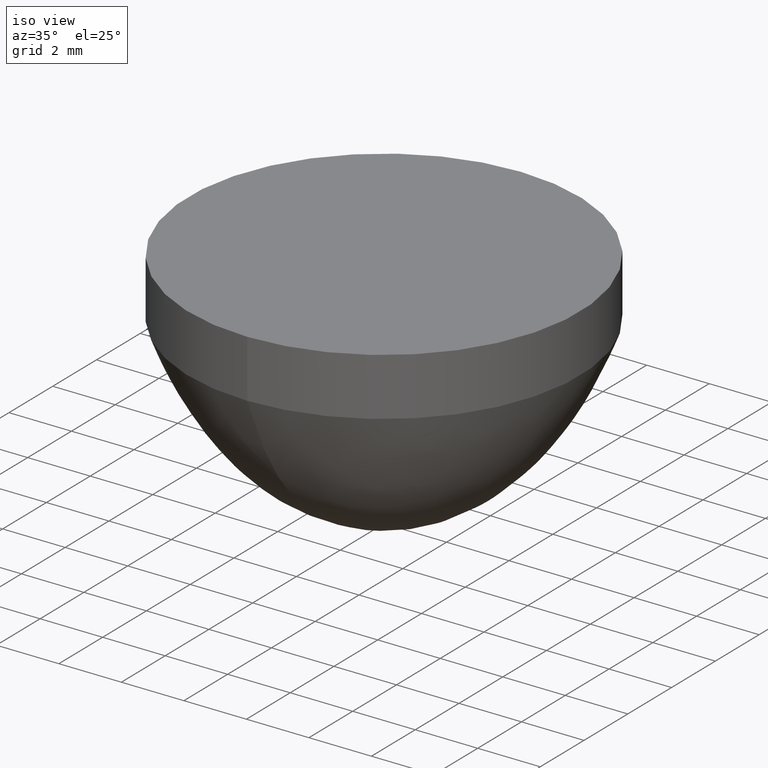
[diagram: clean part render]
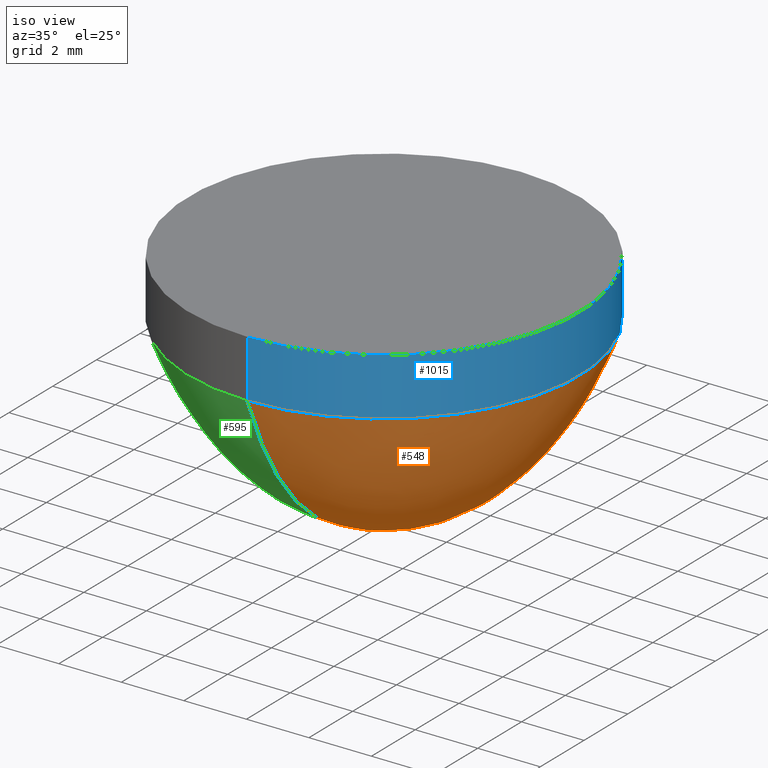
[diagram: same view with three faces highlighted in distinct colors, each labeled with its STEP entity id]
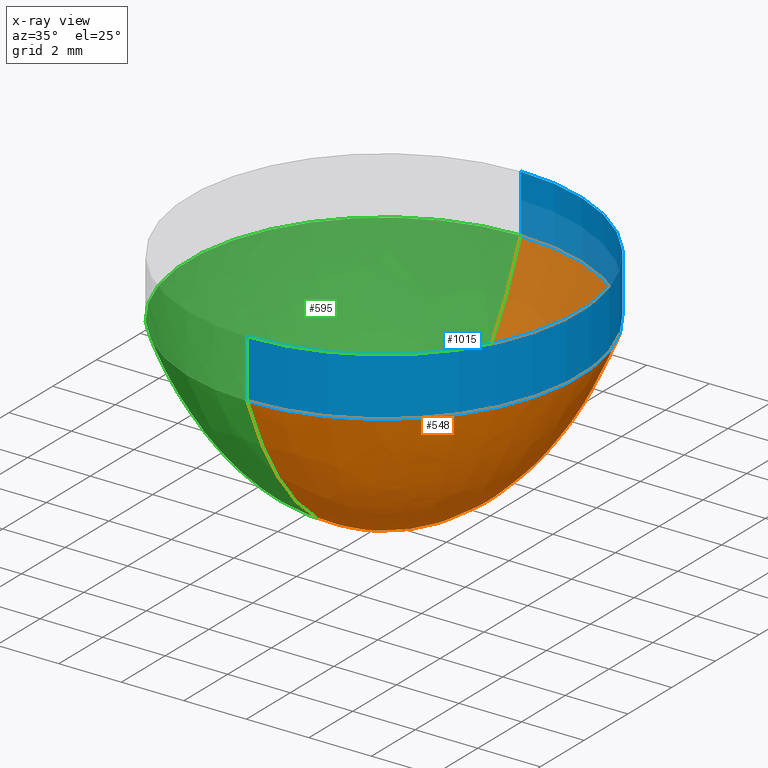
[diagram: x-ray of the same camera — body ghosted, the three highlighted faces saturated]
A machine part, iso view with three faces highlighted in distinct colors.
The next image is the same camera in x-ray (body ghosted, the three faces saturated) — at least one of them is partly hidden behind the body in this view.
Their STEP definitions:

[orange] entity #548 — the highlighted face is a freeform B-spline surface patch.
#1 = CARTESIAN_POINT ( 'NONE',  ( 7.552083333333338366, 3.776041666666667851, 1.654536851167959899 ) ) ;
#2 = CARTESIAN_POINT ( 'NONE',  ( -1.116214530472847389E-16, -0.9114583333333330373, 0.08839285325915120783 ) ) ;
#3 = CARTESIAN_POINT ( 'NONE',  ( 10.28645833333334103, 5.143229166666667851, 3.370300840580799928 ) ) ;
#4 = CARTESIAN_POINT ( 'NONE',  ( 2.213541666666658969, -1.106770833333329929, 0.1308325396302119636 ) ) ;
#6 = CARTESIAN_POINT ( 'NONE',  ( 6.119791666666658969, -3.059895833333331705, 1.052139608659050207 ) ) ;
#7 = CARTESIAN_POINT ( 'NONE',  ( -6.059450308281178018E-16, -4.947916666666669627, 3.067568502036839728 ) ) ;
#8 = CARTESIAN_POINT ( 'NONE',  ( 3.385416666666658525, -1.692708333333330373, 0.3094574606242030401 ) ) ;
#11 = CARTESIAN_POINT ( 'NONE',  ( 5.338541666666660745, 2.669270833333329040, 0.7896036615407570070 ) ) ;
#13 = CARTESIAN_POINT ( 'NONE',  ( 0.000000000000000000, 6.184895833333330373, 5.479266857923169809 ) ) ;
#14 = CARTESIAN_POINT ( 'NONE',  ( 4.947916666666659857, 2.473958333333328596, 0.6741450341991779283 ) ) ;
#18 = EDGE_LOOP ( 'NONE', ( #288, #1029, #606 ) ) ;
#20 = CARTESIAN_POINT ( 'NONE',  ( -4.624317340530374514E-16, -3.776041666666669627, 1.654536851167959899 ) ) ;
#25 = CARTESIAN_POINT ( 'NONE',  ( 8.723958333333339255, -4.361979166666671404, 2.284113276454510011 ) ) ;
#30 = CARTESIAN_POINT ( 'NONE',  ( 0.000000000000000000, 3.776041666666669627, 1.654536851167959899 ) ) ;
#32 = CARTESIAN_POINT ( 'NONE',  ( 9.505208333333337478, -4.752604166666670515, 2.786900633538230032 ) ) ;
#36 = CIRCLE ( 'NONE', #570, 6.250000000000000000 ) ;
#37 = CARTESIAN_POINT ( 'NONE',  ( -5.660802261683724985E-16, -4.622395833333329485, 2.611011919798690073 ) ) ;
#42 = CARTESIAN_POINT ( 'NONE',  ( 1.179998217928438414E-15, 4.817708333333330373, 2.878086875329060490 ) ) ;
#51 = CARTESIAN_POINT ( 'NONE',  ( -6.298639136239646090E-16, -5.143229166666670515, 3.370300840580799928 ) ) ;
#54 = CARTESIAN_POINT ( 'NONE',  ( 0.9114583333333338144, 0.4557291666666667407, 0.02168535856789539917 ) ) ;
#58 = CARTESIAN_POINT ( 'NONE',  ( 0.000000000000000000, 2.408854166666669627, 0.6379115930472800677 ) ) ;
#60 = CARTESIAN_POINT ( 'NONE',  ( 2.232429060945694777E-16, 0.9114583333333330373, 0.08839285325915120783 ) ) ;
#66 = CARTESIAN_POINT ( 'NONE',  ( -3.189184372779570394E-17, -0.2604166666666670182, 0.006771637511739370119 ) ) ;
#67 = CARTESIAN_POINT ( 'NONE',  ( -6.777016792156581248E-16, -5.533854166666669627, 4.051858740134670178 ) ) ;
#68 = CARTESIAN_POINT ( 'NONE',  ( 12.36979166666665897, -6.184895833333332149, 5.479266857923170697 ) ) ;
#74 = CARTESIAN_POINT ( 'NONE',  ( -6.378368745559127230E-17, -0.5208333333333330373, 0.02847043261686370286 ) ) ;
#76 = CARTESIAN_POINT ( 'NONE',  ( 11.58854166666665897, 5.794270833333326820, 4.572626333677420440 ) ) ;
#77 = CARTESIAN_POINT ( 'NONE',  ( -5.581072652364243106E-17, -0.4557291666666670182, 0.02168535856789539917 ) ) ;
#79 = CARTESIAN_POINT ( 'NONE',  ( -1.993240232987232621E-16, -1.627604166666670071, 0.2857324796926530297 ) ) ;
#80 = CARTESIAN_POINT ( 'NONE',  ( 11.19791666666666075, 5.598958333333327708, 4.176516474927489675 ) ) ;
#81 = CARTESIAN_POINT ( 'NONE',  ( 2.994791666666658969, -1.497395833333330595, 0.2412181577487190476 ) ) ;
#82 = CARTESIAN_POINT ( 'NONE',  ( -4.464858121891388568E-16, -3.645833333333330373, 1.532324712572090020 ) ) ;
#83 = CARTESIAN_POINT ( 'NONE',  ( -4.624317340530374514E-16, -3.776041666666669627, 1.654536851167959899 ) ) ;
#84 = CARTESIAN_POINT ( 'NONE',  ( -6.617557573517594316E-16, -5.403645833333329485, 3.812328309631829892 ) ) ;
#85 = CARTESIAN_POINT ( 'NONE',  ( 3.255208333333338810, -1.627604166666670515, 0.2857324796926530297 ) ) ;
#87 = CARTESIAN_POINT ( 'NONE',  ( 6.901041666666658081, -3.450520833333331261, 1.359979488573070050 ) ) ;
#88 = CARTESIAN_POINT ( 'NONE',  ( -1.594592186389778603E-16, -1.302083333333329929, 0.1817297191784270072 ) ) ;
#89 = CARTESIAN_POINT ( 'NONE',  ( 4.427083333333339255, 2.213541666666668295, 0.5357410625377601043 ) ) ;
#92 = CARTESIAN_POINT ( 'NONE',  ( 6.856746401476073235E-16, 2.799479166666669627, 0.8723380456796560045 ) ) ;
#93 = CARTESIAN_POINT ( 'NONE',  ( -2.471617888904167287E-16, -2.018229166666670071, 0.4431651274884079728 ) ) ;
#94 = CARTESIAN_POINT ( 'NONE',  ( -1.993240232987232621E-16, -1.627604166666670071, 0.2857324796926530297 ) ) ;
#96 = CARTESIAN_POINT ( 'NONE',  ( 0.000000000000000000, 4.817708333333330373, 2.878086875329060490 ) ) ;
#98 = CARTESIAN_POINT ( 'NONE',  ( 7.016205620115036502E-16, 2.864583333333329929, 0.9154597910797710458 ) ) ;
#100 = CARTESIAN_POINT ( 'NONE',  ( 0.000000000000000000, 6.250000000000000000, 5.650683899439189695 ) ) ;
#102 = CARTESIAN_POINT ( 'NONE',  ( -2.790536326182116006E-16, -2.278645833333329929, 0.5687095803936269567 ) ) ;
#109 = CARTESIAN_POINT ( 'NONE',  ( -4.943235777808322740E-16, -4.036458333333330373, 1.917500133454330014 ) ) ;
#112 = CARTESIAN_POINT ( 'NONE',  ( 0.000000000000000000, 4.166666666666670515, 2.058875915567950354 ) ) ;
#114 = CARTESIAN_POINT ( 'NONE',  ( 7.942708333333340143, 3.971354166666668739, 1.849369540602530115 ) ) ;
#117 = EDGE_CURVE ( 'NONE', #208, #702, #793, .T. ) ;
#120 = CARTESIAN_POINT ( 'NONE',  ( 9.635416666666658969, 4.817708333333326820, 2.878086875329060046 ) ) ;
#126 = CARTESIAN_POINT ( 'NONE',  ( 8.072916666666658969, -4.036458333333331261, 1.917500133454330014 ) ) ;
#130 = CARTESIAN_POINT ( 'NONE',  ( 7.654042494670957606E-16, -6.250000000000000000, 5.650683899439189695 ) ) ;
#135 = CARTESIAN_POINT ( 'NONE',  ( -7.335124057392997547E-16, -5.989583333333330373, 5.005066537595090459 ) ) ;
#137 = CARTESIAN_POINT ( 'NONE',  ( 1.432291666666665630, -0.7161458333333331483, 0.05430107035785339958 ) ) ;
#140 = CARTESIAN_POINT ( 'NONE',  ( -7.574312885351464633E-16, -6.184895833333330373, 5.479266857923169809 ) ) ;
#147 = CARTESIAN_POINT ( 'NONE',  ( 0.000000000000000000, 0.3255208333333330373, 0.01083595830846479854 ) ) ;
#149 = CARTESIAN_POINT ( 'NONE',  ( -1.116214530472847389E-16, -0.9114583333333330373, 0.08839285325915120783 ) ) ;
#152 = CARTESIAN_POINT ( 'NONE',  ( -6.856746401476061403E-16, -5.598958333333329485, 4.176516474927489675 ) ) ;
#154 = CARTESIAN_POINT ( 'NONE',  ( 1.275673749111825643E-15, 5.208333333333330373, 3.476442976725440115 ) ) ;
#159 = CARTESIAN_POINT ( 'NONE',  ( 11.97916666666666075, 5.989583333333327708, 5.005066537595090459 ) ) ;
#161 = CARTESIAN_POINT ( 'NONE',  ( 1.754051405028760358E-16, 0.7161458333333329263, 0.05430107035785339958 ) ) ;
#163 = CARTESIAN_POINT ( 'NONE',  ( -3.508102810057518251E-16, -2.864583333333329929, 0.9154597910797710458 ) ) ;
#165 = CARTESIAN_POINT ( 'NONE',  ( -6.777016792156581248E-16, -5.533854166666669627, 4.051858740134670178 ) ) ;
#166 = CARTESIAN_POINT ( 'NONE',  ( 2.604166666666659857, -1.302083333333330373, 0.1817297191784270072 ) ) ;
#167 = CARTESIAN_POINT ( 'NONE',  ( 4.947916666666658969, -2.473958333333330817, 0.6741450341991779283 ) ) ;
#168 = CARTESIAN_POINT ( 'NONE',  ( -4.464858121891388568E-16, -3.645833333333330373, 1.532324712572090020 ) ) ;
#169 = CARTESIAN_POINT ( 'NONE',  ( -7.654042494670957606E-16, -6.250000000000000000, 5.650683899439189695 ) ) ;
#170 = CARTESIAN_POINT ( 'NONE',  ( 5.421613433725268746E-16, 2.213541666666669627, 0.5357410625377601043 ) ) ;
#172 = CARTESIAN_POINT ( 'NONE',  ( -4.385128512571906935E-16, -3.580729166666670071, 1.473463703149120008 ) ) ;
#173 = CARTESIAN_POINT ( 'NONE',  ( -5.421613433725257899E-16, -4.427083333333329485, 2.362860502003009788 ) ) ;
#174 = CARTESIAN_POINT ( 'NONE',  ( 12.50000000000000000, 6.249999999999997335, 5.650683899439190583 ) ) ;
#175 = CARTESIAN_POINT ( 'NONE',  ( 3.986480465974465242E-16, 1.627604166666670071, 0.2857324796926530297 ) ) ;
#178 = CARTESIAN_POINT ( 'NONE',  ( 5.598958333333339255, 2.799479166666668295, 0.8723380456796560045 ) ) ;
#182 = CARTESIAN_POINT ( 'NONE',  ( 5.102694996447296854E-16, 2.083333333333330373, 0.4729688137143640003 ) ) ;
#184 = CARTESIAN_POINT ( 'NONE',  ( 0.000000000000000000, 3.580729166666670071, 1.473463703149120008 ) ) ;
#186 = CARTESIAN_POINT ( 'NONE',  ( 6.901041666666659857, 3.450520833333328596, 1.359979488573070050 ) ) ;
#188 = CARTESIAN_POINT ( 'NONE',  ( 0.000000000000000000, 5.729166666666669627, 4.436901471416569542 ) ) ;
#190 = CARTESIAN_POINT ( 'NONE',  ( 4.817708333333339255, -2.408854166666670071, 0.6379115930472800677 ) ) ;
#193 = CARTESIAN_POINT ( 'NONE',  ( 0.000000000000000000, 6.119791666666670515, 5.316347176465129998 ) ) ;
#196 = CARTESIAN_POINT ( 'NONE',  ( 10.02604166666666075, 5.013020833333327708, 3.165863095480710321 ) ) ;
#202 = CARTESIAN_POINT ( 'NONE',  ( -5.182424605766790813E-16, -4.231770833333330373, 2.132120784255249646 ) ) ;
#208 = VERTEX_POINT ( 'NONE', #563 ) ;
#209 = CARTESIAN_POINT ( 'NONE',  ( 8.463541666666658969, 4.231770833333328596, 2.132120784255249646 ) ) ;
#213 = CARTESIAN_POINT ( 'NONE',  ( -4.863506168488841600E-16, -3.971354166666670071, 1.849369540602529893 ) ) ;
#222 = CARTESIAN_POINT ( 'NONE',  ( 0.000000000000000000, 2.278645833333329929, 0.5687095803936269567 ) ) ;
#226 = CARTESIAN_POINT ( 'NONE',  ( 0.000000000000000000, 0.000000000000000000, 0.000000000000000000 ) ) ;
#229 = CARTESIAN_POINT ( 'NONE',  ( 0.000000000000000000, 0.000000000000000000, 0.000000000000000000 ) ) ;
#231 = CARTESIAN_POINT ( 'NONE',  ( 0.000000000000000000, 1.432291666666670071, 0.2204288428675709732 ) ) ;
#233 = CARTESIAN_POINT ( 'NONE',  ( 7.972960931948906572E-17, 0.3255208333333330373, 0.01083595830846479854 ) ) ;
#237 = CARTESIAN_POINT ( 'NONE',  ( -7.494583276031983493E-16, -6.119791666666670515, 5.316347176465129998 ) ) ;
#239 = CARTESIAN_POINT ( 'NONE',  ( 1.302083333333334147, 0.6510416666666667407, 0.04477829262630569906 ) ) ;
#241 = CARTESIAN_POINT ( 'NONE',  ( 0.000000000000000000, 2.018229166666670071, 0.4431651274884079728 ) ) ;
#242 = CARTESIAN_POINT ( 'NONE',  ( 11.06770833333333925, -5.533854166666671404, 4.051858740134670178 ) ) ;
#245 = CARTESIAN_POINT ( 'NONE',  ( -6.139179917600660144E-16, -5.013020833333330373, 3.165863095480710321 ) ) ;
#246 = CARTESIAN_POINT ( 'NONE',  ( 11.45833333333333925, 5.729166666666666963, 4.436901471416570431 ) ) ;
#247 = CARTESIAN_POINT ( 'NONE',  ( -1.594592186389778603E-16, -1.302083333333329929, 0.1817297191784270072 ) ) ;
#250 = CARTESIAN_POINT ( 'NONE',  ( -1.355403358431311023E-16, -1.106770833333329929, 0.1308325396302119914 ) ) ;
#251 = CARTESIAN_POINT ( 'NONE',  ( -7.095935229434529475E-16, -5.794270833333330373, 4.572626333677420440 ) ) ;
#252 = CARTESIAN_POINT ( 'NONE',  ( 2.604166666666659857, 1.302083333333329263, 0.1817297191784270072 ) ) ;
#255 = CARTESIAN_POINT ( 'NONE',  ( 9.248634681060749028E-16, 3.776041666666669627, 1.654536851167959899 ) ) ;
#256 = CARTESIAN_POINT ( 'NONE',  ( -3.029725154140583585E-16, -2.473958333333330373, 0.6741450341991780393 ) ) ;
#257 = CARTESIAN_POINT ( 'NONE',  ( 10.41666666666665897, -5.208333333333331261, 3.476442976725440115 ) ) ;
#258 = CARTESIAN_POINT ( 'NONE',  ( 3.255208333333339699, 1.627604166666669183, 0.2857324796926530297 ) ) ;
#260 = CARTESIAN_POINT ( 'NONE',  ( 5.729166666666659857, 2.864583333333329040, 0.9154597910797709348 ) ) ;
#261 = CARTESIAN_POINT ( 'NONE',  ( 0.000000000000000000, 0.000000000000000000, 0.000000000000000000 ) ) ;
#262 = CARTESIAN_POINT ( 'NONE',  ( 4.036458333333339255, -2.018229166666670071, 0.4431651274884080283 ) ) ;
#264 = CARTESIAN_POINT ( 'NONE',  ( 0.000000000000000000, 4.427083333333329485, 2.362860502003009788 ) ) ;
#266 = CARTESIAN_POINT ( 'NONE',  ( 5.208333333333339255, -2.604166666666670515, 0.7499911007106638827 ) ) ;
#270 = CARTESIAN_POINT ( 'NONE',  ( 0.000000000000000000, 5.794270833333330373, 4.572626333677420440 ) ) ;
#271 = CARTESIAN_POINT ( 'NONE',  ( 6.510416666666658081, -3.255208333333330373, 1.200128424879610023 ) ) ;
#277 = CARTESIAN_POINT ( 'NONE',  ( 5.989583333333338366, 2.994791666666669183, 1.005360619775349962 ) ) ;
#280 = CARTESIAN_POINT ( 'NONE',  ( 0.000000000000000000, 5.403645833333329485, 3.812328309631829892 ) ) ;
#282 = CARTESIAN_POINT ( 'NONE',  ( 1.068376764881155352E-15, 4.361979166666670515, 2.284113276454510455 ) ) ;
#285 = EDGE_CURVE ( 'NONE', #944, #702, #370, .T. ) ;
#288 = ORIENTED_EDGE ( 'NONE', *, *, #741, .F. ) ;
#289 = CARTESIAN_POINT ( 'NONE',  ( 8.854166666666657193, -4.427083333333330373, 2.362860502003009788 ) ) ;
#293 = CARTESIAN_POINT ( 'NONE',  ( 7.682291666666658081, -3.841145833333330817, 1.717887769790769736 ) ) ;
#306 = CARTESIAN_POINT ( 'NONE',  ( 0.000000000000000000, 1.041666666666670071, 0.1157549521183500046 ) ) ;
#309 = CARTESIAN_POINT ( 'NONE',  ( 1.116214530472848621E-16, 0.4557291666666670182, 0.02168535856789539917 ) ) ;
#312 = CARTESIAN_POINT ( 'NONE',  ( 0.000000000000000000, 3.059895833333330373, 1.052139608659050207 ) ) ;
#314 = CARTESIAN_POINT ( 'NONE',  ( 1.275673749111825446E-16, 0.5208333333333330373, 0.02847043261686370286 ) ) ;
#318 = CARTESIAN_POINT ( 'NONE',  ( 0.000000000000000000, 0.8463541666666670737, 0.07610835626761690287 ) ) ;
#320 = CARTESIAN_POINT ( 'NONE',  ( 0.000000000000000000, 0.000000000000000000, 0.000000000000000000 ) ) ;
#323 = CARTESIAN_POINT ( 'NONE',  ( 0.000000000000000000, 0.06510416666666669905, 0.000000000000000000 ) ) ;
#324 = CARTESIAN_POINT ( 'NONE',  ( 1.467024811478599509E-15, 5.989583333333330373, 5.005066537595090459 ) ) ;
#328 = CARTESIAN_POINT ( 'NONE',  ( -4.863506168488841600E-16, -3.971354166666670071, 1.849369540602529893 ) ) ;
#329 = CARTESIAN_POINT ( 'NONE',  ( -7.255394448073515421E-16, -5.924479166666669627, 4.856710558644910414 ) ) ;
#330 = CARTESIAN_POINT ( 'NONE',  ( -1.754051405028765288E-16, -1.432291666666670071, 0.2204288428675709732 ) ) ;
#332 = CARTESIAN_POINT ( 'NONE',  ( -1.514862577070297956E-16, -1.236979166666670071, 0.1638199320723049968 ) ) ;
#333 = CARTESIAN_POINT ( 'NONE',  ( 11.84895833333333748, -5.924479166666671404, 4.856710558644909526 ) ) ;
#334 = CARTESIAN_POINT ( 'NONE',  ( -2.710806716862634373E-16, -2.213541666666669627, 0.5357410625377601043 ) ) ;
#335 = CARTESIAN_POINT ( 'NONE',  ( 6.770833333333337478, -3.385416666666670515, 1.305356454906290153 ) ) ;
#337 = CARTESIAN_POINT ( 'NONE',  ( -1.036484921153359223E-16, -0.8463541666666670737, 0.07610835626761690287 ) ) ;
#338 = CARTESIAN_POINT ( 'NONE',  ( 1.259727827247929218E-15, 5.143229166666670515, 3.370300840580799928 ) ) ;
#339 = CARTESIAN_POINT ( 'NONE',  ( 2.710806716862622047E-16, 1.106770833333329929, 0.1308325396302119914 ) ) ;
#342 = CARTESIAN_POINT ( 'NONE',  ( 6.119791666666660745, 3.059895833333329040, 1.052139608659050207 ) ) ;
#343 = CARTESIAN_POINT ( 'NONE',  ( -1.594592186389779034E-17, -0.1302083333333330095, 0.001353657014457470024 ) ) ;
#344 = CARTESIAN_POINT ( 'NONE',  ( 3.385416666666659413, 1.692708333333329040, 0.3094574606242030401 ) ) ;
#346 = CARTESIAN_POINT ( 'NONE',  ( 6.537827964198102329E-16, 2.669270833333330373, 0.7896036615407570070 ) ) ;
#349 = CARTESIAN_POINT ( 'NONE',  ( -4.145939684613439356E-16, -3.385416666666669627, 1.305356454906290153 ) ) ;
#356 = CARTESIAN_POINT ( 'NONE',  ( 8.929716243782777136E-16, 3.645833333333330373, 1.532324712572090020 ) ) ;
#359 = CARTESIAN_POINT ( 'NONE',  ( 0.000000000000000000, 5.598958333333329485, 4.176516474927489675 ) ) ;
#361 = CARTESIAN_POINT ( 'NONE',  ( -5.899991089642192072E-16, -4.817708333333330373, 2.878086875329060490 ) ) ;
#367 = CARTESIAN_POINT ( 'NONE',  ( 1.164052296064542186E-15, 4.752604166666669627, 2.786900633538230032 ) ) ;
#370 = B_SPLINE_CURVE_WITH_KNOTS ( 'NONE', 3,
 ( #907, #140, #237, #135, #575, #471, #804, #152, #67, #405, #739, #1073, #51, #245, #7, #837, #503, #750, #1083, #173, #493, #746, #667, #1078, #328, #998, #83, #168, #841, #679, #662, #582, #674, #916, #1002, #163, #432, #1014, #594, #256, #421, #925, #497, #507, #93, #847, #755, #832, #79, #515, #415, #88, #332, #250, #426, #2, #337, #826, #1010, #74, #411, #761, #589, #343, #921, #261 ),
 .UNSPECIFIED., .F., .F.,
 ( 4, 2, 2, 2, 2, 2, 2, 2, 2, 2, 2, 2, 2, 2, 2, 2, 2, 2, 2, 2, 2, 2, 2, 2, 2, 2, 2, 2, 2, 2, 2, 2, 4 ),
 ( -1.000000000000000000, -0.9687500000000000000, -0.9375000000000000000, -0.9062500000000000000, -0.8750000000000000000, -0.8437500000000000000, -0.8125000000000000000, -0.7812500000000000000, -0.7500000000000000000, -0.7187500000000000000, -0.6875000000000000000, -0.6562500000000000000, -0.6250000000000000000, -0.5937500000000000000, -0.5625000000000000000, -0.5312500000000000000, -0.5000000000000000000, -0.4687500000000000000, -0.4375000000000000000, -0.4062500000000000000, -0.3750000000000000000, -0.3437500000000000000, -0.3125000000000000000, -0.2812500000000000000, -0.2500000000000000000, -0.2187500000000000000, -0.1875000000000000000, -0.1562500000000000000, -0.1250000000000000000, -0.09375000000000000000, -0.06250000000000000000, -0.03125000000000000000, 0.000000000000000000 ),
 .UNSPECIFIED. ) ;
#373 = CARTESIAN_POINT ( 'NONE',  ( 9.114583333333339255, 4.557291666666666963, 2.526310072014419816 ) ) ;
#378 = CARTESIAN_POINT ( 'NONE',  ( -5.421613433725257899E-16, -4.427083333333329485, 2.362860502003009788 ) ) ;
#386 = CARTESIAN_POINT ( 'NONE',  ( 0.000000000000000000, 2.669270833333330373, 0.7896036615407570070 ) ) ;
#394 = CARTESIAN_POINT ( 'NONE',  ( 0.000000000000000000, 1.692708333333329929, 0.3094574606242030401 ) ) ;
#398 = CARTESIAN_POINT ( 'NONE',  ( -6.378368745559127230E-17, -0.5208333333333330373, 0.02847043261686370286 ) ) ;
#400 = DIRECTION ( 'NONE',  ( 0.000000000000000000, 0.000000000000000000, 1.000000000000000000 ) ) ;
#403 = CARTESIAN_POINT ( 'NONE',  ( 0.5208333333333339255, -0.2604166666666670737, 0.006771637511739369251 ) ) ;
#405 = CARTESIAN_POINT ( 'NONE',  ( -6.617557573517594316E-16, -5.403645833333329485, 3.812328309631829892 ) ) ;
#406 = CARTESIAN_POINT ( 'NONE',  ( 1.514862577070292927E-15, 6.184895833333330373, 5.479266857923169809 ) ) ;
#411 = CARTESIAN_POINT ( 'NONE',  ( -5.581072652364243106E-17, -0.4557291666666670182, 0.02168535856789539917 ) ) ;
#412 = CARTESIAN_POINT ( 'NONE',  ( -7.574312885351464633E-16, -6.184895833333330373, 5.479266857923169809 ) ) ;
#413 = CARTESIAN_POINT ( 'NONE',  ( -1.594592186389779034E-17, -0.1302083333333330095, 0.001353657014457470024 ) ) ;
#415 = CARTESIAN_POINT ( 'NONE',  ( -1.754051405028765288E-16, -1.432291666666670071, 0.2204288428675709732 ) ) ;
#417 = CARTESIAN_POINT ( 'NONE',  ( 1.323511514703518863E-15, 5.403645833333329485, 3.812328309631829892 ) ) ;
#418 = CARTESIAN_POINT ( 'NONE',  ( 4.145939684613427030E-16, 1.692708333333329929, 0.3094574606242030401 ) ) ;
#420 = CARTESIAN_POINT ( 'NONE',  ( 6.770833333333338366, 3.385416666666667851, 1.305356454906290153 ) ) ;
#421 = CARTESIAN_POINT ( 'NONE',  ( -2.949995544821101952E-16, -2.408854166666669627, 0.6379115930472800677 ) ) ;
#422 = CARTESIAN_POINT ( 'NONE',  ( 1.307565592839622832E-15, 5.338541666666670515, 3.697457372842940071 ) ) ;
#423 = CARTESIAN_POINT ( 'NONE',  ( 2.994791666666659857, 1.497395833333329263, 0.2412181577487190476 ) ) ;
#424 = CARTESIAN_POINT ( 'NONE',  ( -3.906750856654971283E-16, -3.190104166666669627, 1.149523568618900038 ) ) ;
#426 = CARTESIAN_POINT ( 'NONE',  ( -1.275673749111830623E-16, -1.041666666666670071, 0.1157549521183500046 ) ) ;
#428 = CARTESIAN_POINT ( 'NONE',  ( -2.072969842306713515E-16, -1.692708333333329929, 0.3094574606242030401 ) ) ;
#431 = CARTESIAN_POINT ( 'NONE',  ( 6.380208333333338366, 3.190104166666667851, 1.149523568618900038 ) ) ;
#432 = CARTESIAN_POINT ( 'NONE',  ( -3.428373200738036618E-16, -2.799479166666669627, 0.8723380456796560045 ) ) ;
#435 = CARTESIAN_POINT ( 'NONE',  ( 5.338541666666659857, -2.669270833333331261, 0.7896036615407570070 ) ) ;
#438 = CARTESIAN_POINT ( 'NONE',  ( 0.000000000000000000, 4.622395833333329485, 2.611011919798690073 ) ) ;
#440 = CARTESIAN_POINT ( 'NONE',  ( 6.380208333333337478, -3.190104166666670515, 1.149523568618900038 ) ) ;
#447 = CARTESIAN_POINT ( 'NONE',  ( 9.505208333333339255, 4.752604166666666963, 2.786900633538230032 ) ) ;
#450 = CARTESIAN_POINT ( 'NONE',  ( 0.000000000000000000, 4.036458333333330373, 1.917500133454330014 ) ) ;
#451 = CARTESIAN_POINT ( 'NONE',  ( 9.114583333333337478, -4.557291666666670515, 2.526310072014419816 ) ) ;
#455 = CARTESIAN_POINT ( 'NONE',  ( -4.704046949849854668E-16, -3.841145833333329929, 1.717887769790769958 ) ) ;
#461 = CARTESIAN_POINT ( 'NONE',  ( 9.244791666666660745, 4.622395833333327708, 2.611011919798690073 ) ) ;
#471 = CARTESIAN_POINT ( 'NONE',  ( -7.095935229434529475E-16, -5.794270833333330373, 4.572626333677420440 ) ) ;
#473 = CARTESIAN_POINT ( 'NONE',  ( 3.189184372779558068E-17, 0.1302083333333330095, 0.001353657014457470024 ) ) ;
#477 = CARTESIAN_POINT ( 'NONE',  ( 0.000000000000000000, 2.604166666666670071, 0.7499911007106639937 ) ) ;
#480 = CARTESIAN_POINT ( 'NONE',  ( 1.822916666666666075, 0.9114583333333327042, 0.08839285325915119396 ) ) ;
#484 = CARTESIAN_POINT ( 'NONE',  ( 0.000000000000000000, 3.385416666666669627, 1.305356454906290153 ) ) ;
#486 = CARTESIAN_POINT ( 'NONE',  ( -7.972960931948918898E-17, -0.6510416666666670737, 0.04477829262630569906 ) ) ;
#489 = CARTESIAN_POINT ( 'NONE',  ( 0.000000000000000000, 0.1302083333333330095, 0.001353657014457470024 ) ) ;
#490 = CARTESIAN_POINT ( 'NONE',  ( -6.139179917600660144E-16, -5.013020833333330373, 3.165863095480710321 ) ) ;
#492 = CARTESIAN_POINT ( 'NONE',  ( 1.594592186389783348E-17, 0.06510416666666669905, 0.000000000000000000 ) ) ;
#493 = CARTESIAN_POINT ( 'NONE',  ( -5.341883824405776759E-16, -4.361979166666670515, 2.284113276454510455 ) ) ;
#494 = CARTESIAN_POINT ( 'NONE',  ( 11.19791666666665897, -5.598958333333332149, 4.176516474927489675 ) ) ;
#495 = CARTESIAN_POINT ( 'NONE',  ( 1.041666666666665853, -0.5208333333333330373, 0.02847043261686370633 ) ) ;
#497 = CARTESIAN_POINT ( 'NONE',  ( -2.710806716862634373E-16, -2.213541666666669627, 0.5357410625377601043 ) ) ;
#498 = CARTESIAN_POINT ( 'NONE',  ( 11.45833333333333748, -5.729166666666671404, 4.436901471416570431 ) ) ;
#499 = CARTESIAN_POINT ( 'NONE',  ( -1.514862577070297956E-16, -1.236979166666670071, 0.1638199320723049968 ) ) ;
#501 = CARTESIAN_POINT ( 'NONE',  ( 4.557291666666658969, -2.278645833333330373, 0.5687095803936269567 ) ) ;
#503 = CARTESIAN_POINT ( 'NONE',  ( -5.820261480322710931E-16, -4.752604166666669627, 2.786900633538230032 ) ) ;
#504 = CARTESIAN_POINT ( 'NONE',  ( 1.419187045886905895E-15, 5.794270833333330373, 4.572626333677420440 ) ) ;
#505 = CARTESIAN_POINT ( 'NONE',  ( -2.551347498223648427E-16, -2.083333333333330373, 0.4729688137143640003 ) ) ;
#506 = CARTESIAN_POINT ( 'NONE',  ( -4.225669293932920496E-16, -3.450520833333330373, 1.359979488573070050 ) ) ;
#507 = CARTESIAN_POINT ( 'NONE',  ( -2.551347498223648427E-16, -2.083333333333330373, 0.4729688137143640003 ) ) ;
#508 = CARTESIAN_POINT ( 'NONE',  ( 10.67708333333333925, -5.338541666666672292, 3.697457372842940071 ) ) ;
#510 = CARTESIAN_POINT ( 'NONE',  ( 2.473958333333339699, -1.236979166666670071, 0.1638199320723049968 ) ) ;
#512 = CARTESIAN_POINT ( 'NONE',  ( 5.598958333333338366, -2.799479166666670515, 0.8723380456796560045 ) ) ;
#515 = CARTESIAN_POINT ( 'NONE',  ( -1.833781014348245936E-16, -1.497395833333329929, 0.2412181577487189921 ) ) ;
#516 = CARTESIAN_POINT ( 'NONE',  ( -2.471617888904167287E-16, -2.018229166666670071, 0.4431651274884079728 ) ) ;
#518 = CARTESIAN_POINT ( 'NONE',  ( 0.000000000000000000, 3.450520833333330373, 1.359979488573070050 ) ) ;
#520 = CARTESIAN_POINT ( 'NONE',  ( 5.989583333333338366, -2.994791666666670515, 1.005360619775349962 ) ) ;
#522 = CARTESIAN_POINT ( 'NONE',  ( 0.000000000000000000, 5.338541666666670515, 3.697457372842940071 ) ) ;
#524 = CARTESIAN_POINT ( 'NONE',  ( 4.817708333333339255, 2.408854166666668295, 0.6379115930472800677 ) ) ;
#529 = CARTESIAN_POINT ( 'NONE',  ( 8.333333333333339255, 4.166666666666667851, 2.058875915567949910 ) ) ;
#533 = CARTESIAN_POINT ( 'NONE',  ( 0.000000000000000000, 4.947916666666669627, 3.067568502036839728 ) ) ;
#535 = CARTESIAN_POINT ( 'NONE',  ( 8.072916666666660745, 4.036458333333328596, 1.917500133454330014 ) ) ;
#539 = CARTESIAN_POINT ( 'NONE',  ( 1.036484921153358163E-15, 4.231770833333330373, 2.132120784255249646 ) ) ;
#544 = CARTESIAN_POINT ( 'NONE',  ( -5.820261480322710931E-16, -4.752604166666669627, 2.786900633538230032 ) ) ;
#548 = ADVANCED_FACE ( 'NONE', ( #668 ), #1048, .T. ) ;
#558 = CARTESIAN_POINT ( 'NONE',  ( 0.000000000000000000, 0.5208333333333330373, 0.02847043261686370286 ) ) ;
#563 = CARTESIAN_POINT ( 'NONE',  ( 0.000000000000000000, 6.250000000000000000, 5.650683899439189695 ) ) ;
#566 = CARTESIAN_POINT ( 'NONE',  ( 1.594592186389783780E-16, 0.6510416666666670737, 0.04477829262630569906 ) ) ;
#570 = AXIS2_PLACEMENT_3D ( 'NONE', #1057, #400, #965 ) ;
#572 = CARTESIAN_POINT ( 'NONE',  ( 1.302083333333333925, -0.6510416666666671848, 0.04477829262630569906 ) ) ;
#575 = CARTESIAN_POINT ( 'NONE',  ( -7.255394448073515421E-16, -5.924479166666669627, 4.856710558644910414 ) ) ;
#578 = CARTESIAN_POINT ( 'NONE',  ( 0.000000000000000000, 2.799479166666669627, 0.8723380456796560045 ) ) ;
#579 = CARTESIAN_POINT ( 'NONE',  ( -6.537827964198114162E-16, -5.338541666666670515, 3.697457372842940071 ) ) ;
#580 = CARTESIAN_POINT ( 'NONE',  ( -8.770257025143801790E-17, -0.7161458333333329263, 0.05430107035785339958 ) ) ;
#582 = CARTESIAN_POINT ( 'NONE',  ( -3.986480465974452916E-16, -3.255208333333329929, 1.200128424879610023 ) ) ;
#583 = CARTESIAN_POINT ( 'NONE',  ( -7.335124057392997547E-16, -5.989583333333330373, 5.005066537595090459 ) ) ;
#585 = CARTESIAN_POINT ( 'NONE',  ( 3.776041666666658969, -1.888020833333330151, 0.3866350935222500618 ) ) ;
#589 = CARTESIAN_POINT ( 'NONE',  ( -3.189184372779570394E-17, -0.2604166666666670182, 0.006771637511739370119 ) ) ;
#590 = CARTESIAN_POINT ( 'NONE',  ( -6.298639136239646090E-16, -5.143229166666670515, 3.370300840580799928 ) ) ;
#591 = CARTESIAN_POINT ( 'NONE',  ( 2.473958333333340143, 1.236979166666669405, 0.1638199320723049968 ) ) ;
#593 = CARTESIAN_POINT ( 'NONE',  ( 8.770257025143813870E-16, 3.580729166666670071, 1.473463703149120008 ) ) ;
#594 = CARTESIAN_POINT ( 'NONE',  ( -3.189184372779570025E-16, -2.604166666666670071, 0.7499911007106639937 ) ) ;
#596 = CARTESIAN_POINT ( 'NONE',  ( 12.36979166666665897, 6.184895833333328596, 5.479266857923170697 ) ) ;
#597 = CARTESIAN_POINT ( 'NONE',  ( 3.645833333333340143, 1.822916666666669405, 0.3599087831844560159 ) ) ;
#598 = CARTESIAN_POINT ( 'NONE',  ( 9.408093899699709336E-16, 3.841145833333329929, 1.717887769790769958 ) ) ;
#600 = CARTESIAN_POINT ( 'NONE',  ( 4.943235777808334573E-16, 2.018229166666670071, 0.4431651274884079728 ) ) ;
#602 = CARTESIAN_POINT ( 'NONE',  ( 0.000000000000000000, 3.841145833333329929, 1.717887769790769958 ) ) ;
#604 = CARTESIAN_POINT ( 'NONE',  ( 6.378368745559140049E-16, 2.604166666666670071, 0.7499911007106639937 ) ) ;
#606 = ORIENTED_EDGE ( 'NONE', *, *, #117, .F. ) ;
#608 = CARTESIAN_POINT ( 'NONE',  ( 6.059450308281167171E-16, 2.473958333333330373, 0.6741450341991780393 ) ) ;
#612 = CARTESIAN_POINT ( 'NONE',  ( 0.000000000000000000, 5.013020833333330373, 3.165863095480710321 ) ) ;
#614 = CARTESIAN_POINT ( 'NONE',  ( 8.854166666666660745, 4.427083333333327708, 2.362860502003009788 ) ) ;
#617 = CARTESIAN_POINT ( 'NONE',  ( 0.000000000000000000, 5.208333333333330373, 3.476442976725440115 ) ) ;
#619 = CARTESIAN_POINT ( 'NONE',  ( 1.132160452336744997E-15, 4.622395833333329485, 2.611011919798690073 ) ) ;
#624 = CARTESIAN_POINT ( 'NONE',  ( 0.000000000000000000, 4.752604166666669627, 2.786900633538230032 ) ) ;
#625 = CARTESIAN_POINT ( 'NONE',  ( 9.895833333333339255, 4.947916666666666963, 3.067568502036839284 ) ) ;
#631 = CARTESIAN_POINT ( 'NONE',  ( 7.682291666666658969, 3.841145833333328152, 1.717887769790769736 ) ) ;
#641 = CARTESIAN_POINT ( 'NONE',  ( -1.036484921153359223E-16, -0.8463541666666670737, 0.07610835626761690287 ) ) ;
#644 = CARTESIAN_POINT ( 'NONE',  ( 0.000000000000000000, 0.4557291666666670182, 0.02168535856789539917 ) ) ;
#646 = CARTESIAN_POINT ( 'NONE',  ( 6.378368745559140789E-17, 0.2604166666666670182, 0.006771637511739370119 ) ) ;
#648 = CARTESIAN_POINT ( 'NONE',  ( 0.000000000000000000, 0.2604166666666670182, 0.006771637511739370119 ) ) ;
#650 = CARTESIAN_POINT ( 'NONE',  ( 2.083333333333339699, -1.041666666666670293, 0.1157549521183499908 ) ) ;
#652 = CARTESIAN_POINT ( 'NONE',  ( 0.000000000000000000, 1.302083333333329929, 0.1817297191784270072 ) ) ;
#656 = CARTESIAN_POINT ( 'NONE',  ( 2.083333333333340143, 1.041666666666669627, 0.1157549521183499908 ) ) ;
#658 = CARTESIAN_POINT ( 'NONE',  ( 0.000000000000000000, 2.083333333333330373, 0.4729688137143640003 ) ) ;
#662 = CARTESIAN_POINT ( 'NONE',  ( -4.145939684613439356E-16, -3.385416666666669627, 1.305356454906290153 ) ) ;
#665 = CARTESIAN_POINT ( 'NONE',  ( -6.856746401476061403E-16, -5.598958333333329485, 4.176516474927489675 ) ) ;
#666 = CARTESIAN_POINT ( 'NONE',  ( 3.667562028696491871E-16, 1.497395833333329929, 0.2412181577487189921 ) ) ;
#667 = CARTESIAN_POINT ( 'NONE',  ( -5.102694996447308687E-16, -4.166666666666670515, 2.058875915567950354 ) ) ;
#668 = FACE_OUTER_BOUND ( 'NONE', #18, .T. ) ;
#670 = CARTESIAN_POINT ( 'NONE',  ( 4.427083333333338366, -2.213541666666670515, 0.5357410625377601043 ) ) ;
#673 = CARTESIAN_POINT ( 'NONE',  ( -3.986480465974452916E-16, -3.255208333333329929, 1.200128424879610023 ) ) ;
#674 = CARTESIAN_POINT ( 'NONE',  ( -3.906750856654971283E-16, -3.190104166666669627, 1.149523568618900038 ) ) ;
#675 = CARTESIAN_POINT ( 'NONE',  ( 12.23958333333333925, 6.119791666666668739, 5.316347176465129998 ) ) ;
#676 = CARTESIAN_POINT ( 'NONE',  ( 4.624317340530361695E-16, 1.888020833333329929, 0.3866350935222499507 ) ) ;
#678 = CARTESIAN_POINT ( 'NONE',  ( 7.335124057393009380E-16, 2.994791666666670071, 1.005360619775349962 ) ) ;
#679 = CARTESIAN_POINT ( 'NONE',  ( -4.225669293932920496E-16, -3.450520833333330373, 1.359979488573070050 ) ) ;
#680 = CARTESIAN_POINT ( 'NONE',  ( 4.464858121891400401E-16, 1.822916666666670071, 0.3599087831844560159 ) ) ;
#683 = CARTESIAN_POINT ( 'NONE',  ( 8.451338587865840991E-16, 3.450520833333330373, 1.359979488573070050 ) ) ;
#686 = CARTESIAN_POINT ( 'NONE',  ( 7.972960931948905833E-16, 3.255208333333329929, 1.200128424879610023 ) ) ;
#690 = CARTESIAN_POINT ( 'NONE',  ( 0.000000000000000000, 4.231770833333330373, 2.132120784255249646 ) ) ;
#692 = CARTESIAN_POINT ( 'NONE',  ( 7.291666666666659857, 3.645833333333328596, 1.532324712572090020 ) ) ;
#696 = CARTESIAN_POINT ( 'NONE',  ( 0.000000000000000000, 5.924479166666669627, 4.856710558644910414 ) ) ;
#698 = CARTESIAN_POINT ( 'NONE',  ( 1.020538999289461737E-15, 4.166666666666670515, 2.058875915567950354 ) ) ;
#702 = VERTEX_POINT ( 'NONE', #226 ) ;
#704 = CARTESIAN_POINT ( 'NONE',  ( 9.244791666666658969, -4.622395833333331261, 2.611011919798690073 ) ) ;
#710 = CARTESIAN_POINT ( 'NONE',  ( -5.581072652364243845E-16, -4.557291666666669627, 2.526310072014419816 ) ) ;
#723 = CARTESIAN_POINT ( 'NONE',  ( 0.000000000000000000, 2.213541666666669627, 0.5357410625377601043 ) ) ;
#728 = CARTESIAN_POINT ( 'NONE',  ( 2.551347498223661246E-16, 1.041666666666670071, 0.1157549521183500046 ) ) ;
#731 = CARTESIAN_POINT ( 'NONE',  ( 0.000000000000000000, 1.627604166666670071, 0.2857324796926530297 ) ) ;
#733 = CARTESIAN_POINT ( 'NONE',  ( 0.6510416666666659635, -0.3255208333333330928, 0.01083595830846480028 ) ) ;
#736 = CARTESIAN_POINT ( 'NONE',  ( 0.000000000000000000, 2.994791666666670071, 1.005360619775349962 ) ) ;
#738 = CARTESIAN_POINT ( 'NONE',  ( 0.5208333333333340365, 0.2604166666666669072, 0.006771637511739369251 ) ) ;
#739 = CARTESIAN_POINT ( 'NONE',  ( -6.537827964198114162E-16, -5.338541666666670515, 3.697457372842940071 ) ) ;
#740 = CARTESIAN_POINT ( 'NONE',  ( -7.494583276031983493E-16, -6.119791666666670515, 5.316347176465129998 ) ) ;
#741 = EDGE_CURVE ( 'NONE', #944, #208, #36, .T. ) ;
#746 = CARTESIAN_POINT ( 'NONE',  ( -5.182424605766790813E-16, -4.231770833333330373, 2.132120784255249646 ) ) ;
#747 = CARTESIAN_POINT ( 'NONE',  ( 1.498916655206396699E-15, 6.119791666666670515, 5.316347176465129998 ) ) ;
#748 = CARTESIAN_POINT ( 'NONE',  ( 0.2604166666666660190, 0.1302083333333329540, 0.001353657014457470024 ) ) ;
#750 = CARTESIAN_POINT ( 'NONE',  ( -5.660802261683724985E-16, -4.622395833333329485, 2.611011919798690073 ) ) ;
#751 = CARTESIAN_POINT ( 'NONE',  ( 10.67708333333334103, 5.338541666666667851, 3.697457372842940071 ) ) ;
#752 = CARTESIAN_POINT ( 'NONE',  ( -2.232429060945700200E-16, -1.822916666666670071, 0.3599087831844560159 ) ) ;
#754 = CARTESIAN_POINT ( 'NONE',  ( 7.161458333333337478, -3.580729166666670960, 1.473463703149120008 ) ) ;
#755 = CARTESIAN_POINT ( 'NONE',  ( -2.232429060945700200E-16, -1.822916666666670071, 0.3599087831844560159 ) ) ;
#756 = CARTESIAN_POINT ( 'NONE',  ( 1.451078889614703084E-15, 5.924479166666669627, 4.856710558644910414 ) ) ;
#757 = CARTESIAN_POINT ( 'NONE',  ( 3.189184372779557206E-16, 1.302083333333329929, 0.1817297191784270072 ) ) ;
#760 = CARTESIAN_POINT ( 'NONE',  ( -3.747291638015985830E-16, -3.059895833333330373, 1.052139608659050207 ) ) ;
#761 = CARTESIAN_POINT ( 'NONE',  ( -3.986480465974453286E-17, -0.3255208333333330373, 0.01083595830846479854 ) ) ;
#762 = CARTESIAN_POINT ( 'NONE',  ( 4.166666666666659857, -2.083333333333330817, 0.4729688137143640003 ) ) ;
#765 = CARTESIAN_POINT ( 'NONE',  ( -3.268913982099051165E-16, -2.669270833333330373, 0.7896036615407570070 ) ) ;
#769 = CARTESIAN_POINT ( 'NONE',  ( -3.029725154140583585E-16, -2.473958333333330373, 0.6741450341991780393 ) ) ;
#772 = CARTESIAN_POINT ( 'NONE',  ( 0.000000000000000000, 4.361979166666670515, 2.284113276454510455 ) ) ;
#774 = CARTESIAN_POINT ( 'NONE',  ( 7.494583276031971660E-16, 3.059895833333330373, 1.052139608659050207 ) ) ;
#780 = CARTESIAN_POINT ( 'NONE',  ( 9.895833333333339255, -4.947916666666670515, 3.067568502036839284 ) ) ;
#785 = CARTESIAN_POINT ( 'NONE',  ( 0.000000000000000000, 3.971354166666670071, 1.849369540602529893 ) ) ;
#786 = CARTESIAN_POINT ( 'NONE',  ( -5.102694996447308687E-16, -4.166666666666670515, 2.058875915567950354 ) ) ;
#790 = CARTESIAN_POINT ( 'NONE',  ( 1.211890061656235604E-15, 4.947916666666669627, 3.067568502036839728 ) ) ;
#793 = B_SPLINE_CURVE_WITH_KNOTS ( 'NONE', 3,
 ( #100, #13, #193, #1033, #696, #270, #188, #359, #939, #280, #522, #617, #856, #612, #533, #96, #624, #438, #867, #264, #772, #690, #112, #450, #785, #602, #30, #933, #184, #518, #484, #887, #972, #312, #736, #900, #578, #386, #477, #809, #58, #222, #723, #658, #241, #814, #1068, #394, #731, #993, #231, #652, #895, #1059, #306, #1063, #318, #912, #990, #558, #644, #147, #648, #489, #323, #983 ),
 .UNSPECIFIED., .F., .F.,
 ( 4, 2, 2, 2, 2, 2, 2, 2, 2, 2, 2, 2, 2, 2, 2, 2, 2, 2, 2, 2, 2, 2, 2, 2, 2, 2, 2, 2, 2, 2, 2, 2, 4 ),
 ( -1.000000000000000000, -0.9687500000000000000, -0.9375000000000000000, -0.9062500000000000000, -0.8750000000000000000, -0.8437500000000000000, -0.8125000000000000000, -0.7812500000000000000, -0.7500000000000000000, -0.7187500000000000000, -0.6875000000000000000, -0.6562500000000000000, -0.6250000000000000000, -0.5937500000000000000, -0.5625000000000000000, -0.5312500000000000000, -0.5000000000000000000, -0.4687500000000000000, -0.4375000000000000000, -0.4062500000000000000, -0.3750000000000000000, -0.3437500000000000000, -0.3125000000000000000, -0.2812500000000000000, -0.2500000000000000000, -0.2187500000000000000, -0.1875000000000000000, -0.1562500000000000000, -0.1250000000000000000, -0.09375000000000000000, -0.06250000000000000000, -0.03125000000000000000, 0.000000000000000000 ),
 .UNSPECIFIED. ) ;
#796 = CARTESIAN_POINT ( 'NONE',  ( 1.084322686745051580E-15, 4.427083333333329485, 2.362860502003009788 ) ) ;
#804 = CARTESIAN_POINT ( 'NONE',  ( -7.016205620115047349E-16, -5.729166666666669627, 4.436901471416569542 ) ) ;
#806 = CARTESIAN_POINT ( 'NONE',  ( 1.692708333333333703, -0.8463541666666671848, 0.07610835626761690287 ) ) ;
#809 = CARTESIAN_POINT ( 'NONE',  ( 0.000000000000000000, 2.473958333333330373, 0.6741450341991780393 ) ) ;
#814 = CARTESIAN_POINT ( 'NONE',  ( 0.000000000000000000, 1.888020833333329929, 0.3866350935222499507 ) ) ;
#818 = CARTESIAN_POINT ( 'NONE',  ( 0.6510416666666660745, 0.3255208333333329263, 0.01083595830846480028 ) ) ;
#822 = CARTESIAN_POINT ( 'NONE',  ( 12.49999999999999822, -6.250000000000002665, 5.650683899439190583 ) ) ;
#826 = CARTESIAN_POINT ( 'NONE',  ( -8.770257025143801790E-17, -0.7161458333333329263, 0.05430107035785339958 ) ) ;
#827 = CARTESIAN_POINT ( 'NONE',  ( 1.355403358431316250E-15, 5.533854166666669627, 4.051858740134670178 ) ) ;
#830 = CARTESIAN_POINT ( 'NONE',  ( 2.072969842306718445E-16, 0.8463541666666670737, 0.07610835626761690287 ) ) ;
#832 = CARTESIAN_POINT ( 'NONE',  ( -2.072969842306713515E-16, -1.692708333333329929, 0.3094574606242030401 ) ) ;
#833 = CARTESIAN_POINT ( 'NONE',  ( 11.06770833333333925, 5.533854166666666963, 4.051858740134670178 ) ) ;
#834 = CARTESIAN_POINT ( 'NONE',  ( -1.833781014348245936E-16, -1.497395833333329929, 0.2412181577487189921 ) ) ;
#836 = CARTESIAN_POINT ( 'NONE',  ( 4.557291666666660745, 2.278645833333329040, 0.5687095803936269567 ) ) ;
#837 = CARTESIAN_POINT ( 'NONE',  ( -5.899991089642192072E-16, -4.817708333333330373, 2.878086875329060490 ) ) ;
#838 = CARTESIAN_POINT ( 'NONE',  ( 1.371349280295212281E-15, 5.598958333333329485, 4.176516474927489675 ) ) ;
#839 = CARTESIAN_POINT ( 'NONE',  ( -1.355403358431311023E-16, -1.106770833333329929, 0.1308325396302119914 ) ) ;
#840 = CARTESIAN_POINT ( 'NONE',  ( 6.510416666666658081, 3.255208333333327708, 1.200128424879610023 ) ) ;
#841 = CARTESIAN_POINT ( 'NONE',  ( -4.385128512571906935E-16, -3.580729166666670071, 1.473463703149120008 ) ) ;
#842 = CARTESIAN_POINT ( 'NONE',  ( -6.378368745559128216E-16, -5.208333333333330373, 3.476442976725440115 ) ) ;
#843 = CARTESIAN_POINT ( 'NONE',  ( 2.213541666666659857, 1.106770833333329263, 0.1308325396302119636 ) ) ;
#846 = CARTESIAN_POINT ( 'NONE',  ( 7.813501713309942566E-16, 3.190104166666669627, 1.149523568618900038 ) ) ;
#847 = CARTESIAN_POINT ( 'NONE',  ( -2.312158670265180848E-16, -1.888020833333329929, 0.3866350935222499507 ) ) ;
#848 = CARTESIAN_POINT ( 'NONE',  ( 4.036458333333339255, 2.018229166666669183, 0.4431651274884080283 ) ) ;
#852 = CARTESIAN_POINT ( 'NONE',  ( 5.729166666666658969, -2.864583333333330817, 0.9154597910797709348 ) ) ;
#856 = CARTESIAN_POINT ( 'NONE',  ( 0.000000000000000000, 5.143229166666670515, 3.370300840580799928 ) ) ;
#859 = CARTESIAN_POINT ( 'NONE',  ( 5.899991089642203904E-16, 2.408854166666669627, 0.6379115930472800677 ) ) ;
#864 = CARTESIAN_POINT ( 'NONE',  ( -5.341883824405776759E-16, -4.361979166666670515, 2.284113276454510455 ) ) ;
#867 = CARTESIAN_POINT ( 'NONE',  ( 0.000000000000000000, 4.557291666666669627, 2.526310072014419816 ) ) ;
#869 = CARTESIAN_POINT ( 'NONE',  ( -6.059450308281178018E-16, -4.947916666666669627, 3.067568502036839728 ) ) ;
#874 = CARTESIAN_POINT ( 'NONE',  ( 9.727012336977683201E-16, 3.971354166666670071, 1.849369540602529893 ) ) ;
#878 = CARTESIAN_POINT ( 'NONE',  ( 8.463541666666658969, -4.231770833333331261, 2.132120784255249646 ) ) ;
#882 = CARTESIAN_POINT ( 'NONE',  ( 5.581072652364232012E-16, 2.278645833333329929, 0.5687095803936269567 ) ) ;
#887 = CARTESIAN_POINT ( 'NONE',  ( 0.000000000000000000, 3.255208333333329929, 1.200128424879610023 ) ) ;
#890 = CARTESIAN_POINT ( 'NONE',  ( 1.432291666666665853, 0.7161458333333325932, 0.05430107035785339958 ) ) ;
#895 = CARTESIAN_POINT ( 'NONE',  ( 0.000000000000000000, 1.236979166666670071, 0.1638199320723049968 ) ) ;
#897 = CARTESIAN_POINT ( 'NONE',  ( 0.1302083333333333703, 0.06510416666666665741, 0.000000000000000000 ) ) ;
#900 = CARTESIAN_POINT ( 'NONE',  ( 0.000000000000000000, 2.864583333333329929, 0.9154597910797710458 ) ) ;
#904 = CARTESIAN_POINT ( 'NONE',  ( 1.822916666666665630, -0.9114583333333333703, 0.08839285325915119396 ) ) ;
#907 = CARTESIAN_POINT ( 'NONE',  ( 7.654042494670957606E-16, -6.250000000000000000, 5.650683899439189695 ) ) ;
#908 = CARTESIAN_POINT ( 'NONE',  ( 1.403241124023009470E-15, 5.729166666666669627, 4.436901471416569542 ) ) ;
#910 = CARTESIAN_POINT ( 'NONE',  ( 1.041666666666666075, 0.5208333333333328152, 0.02847043261686370633 ) ) ;
#912 = CARTESIAN_POINT ( 'NONE',  ( 0.000000000000000000, 0.7161458333333329263, 0.05430107035785339958 ) ) ;
#913 = CARTESIAN_POINT ( 'NONE',  ( 10.02604166666665897, -5.013020833333331261, 3.165863095480710321 ) ) ;
#914 = CARTESIAN_POINT ( 'NONE',  ( 1.692708333333333703, 0.8463541666666665186, 0.07610835626761690287 ) ) ;
#916 = CARTESIAN_POINT ( 'NONE',  ( -3.747291638015985830E-16, -3.059895833333330373, 1.052139608659050207 ) ) ;
#917 = CARTESIAN_POINT ( 'NONE',  ( 11.58854166666665897, -5.794270833333332149, 4.572626333677420440 ) ) ;
#919 = CARTESIAN_POINT ( 'NONE',  ( 4.166666666666660745, 2.083333333333329485, 0.4729688137143640003 ) ) ;
#920 = CARTESIAN_POINT ( 'NONE',  ( -3.428373200738036618E-16, -2.799479166666669627, 0.8723380456796560045 ) ) ;
#921 = CARTESIAN_POINT ( 'NONE',  ( -7.972960931948916741E-18, -0.06510416666666669905, 0.000000000000000000 ) ) ;
#922 = CARTESIAN_POINT ( 'NONE',  ( 10.28645833333333748, -5.143229166666670515, 3.370300840580799928 ) ) ;
#923 = CARTESIAN_POINT ( 'NONE',  ( 3.029725154140595911E-16, 1.236979166666670071, 0.1638199320723049968 ) ) ;
#924 = CARTESIAN_POINT ( 'NONE',  ( 8.291879369226878711E-16, 3.385416666666669627, 1.305356454906290153 ) ) ;
#925 = CARTESIAN_POINT ( 'NONE',  ( -2.790536326182116006E-16, -2.278645833333329929, 0.5687095803936269567 ) ) ;
#926 = CARTESIAN_POINT ( 'NONE',  ( 11.84895833333333748, 5.924479166666667851, 4.856710558644909526 ) ) ;
#927 = CARTESIAN_POINT ( 'NONE',  ( 3.645833333333338810, -1.822916666666670737, 0.3599087831844560159 ) ) ;
#929 = CARTESIAN_POINT ( 'NONE',  ( -3.667562028696504690E-16, -2.994791666666670071, 1.005360619775349962 ) ) ;
#931 = CARTESIAN_POINT ( 'NONE',  ( -2.312158670265180848E-16, -1.888020833333329929, 0.3866350935222499507 ) ) ;
#933 = CARTESIAN_POINT ( 'NONE',  ( 0.000000000000000000, 3.645833333333330373, 1.532324712572090020 ) ) ;
#935 = CARTESIAN_POINT ( 'NONE',  ( 7.291666666666658969, -3.645833333333331261, 1.532324712572090020 ) ) ;
#939 = CARTESIAN_POINT ( 'NONE',  ( 0.000000000000000000, 5.533854166666669627, 4.051858740134670178 ) ) ;
#941 = CARTESIAN_POINT ( 'NONE',  ( -2.949995544821101952E-16, -2.408854166666669627, 0.6379115930472800677 ) ) ;
#944 = VERTEX_POINT ( 'NONE', #130 ) ;
#945 = CARTESIAN_POINT ( 'NONE',  ( 1.227835983520132029E-15, 5.013020833333330373, 3.165863095480710321 ) ) ;
#950 = CARTESIAN_POINT ( 'NONE',  ( 9.635416666666657193, -4.817708333333331261, 2.878086875329060046 ) ) ;
#958 = CARTESIAN_POINT ( 'NONE',  ( 8.723958333333341031, 4.361979166666668739, 2.284113276454510011 ) ) ;
#962 = CARTESIAN_POINT ( 'NONE',  ( 7.942708333333338366, -3.971354166666671404, 1.849369540602530115 ) ) ;
#965 = DIRECTION ( 'NONE',  ( 0.000000000000000000, 1.000000000000000000, 0.000000000000000000 ) ) ;
#972 = CARTESIAN_POINT ( 'NONE',  ( 0.000000000000000000, 3.190104166666669627, 1.149523568618900038 ) ) ;
#975 = CARTESIAN_POINT ( 'NONE',  ( -1.275673749111830623E-16, -1.041666666666670071, 0.1157549521183500046 ) ) ;
#980 = CARTESIAN_POINT ( 'NONE',  ( 0.2604166666666659635, -0.1302083333333330373, 0.001353657014457470024 ) ) ;
#983 = CARTESIAN_POINT ( 'NONE',  ( 0.000000000000000000, 0.000000000000000000, 0.000000000000000000 ) ) ;
#990 = CARTESIAN_POINT ( 'NONE',  ( 0.000000000000000000, 0.6510416666666670737, 0.04477829262630569906 ) ) ;
#992 = CARTESIAN_POINT ( 'NONE',  ( 0.000000000000000000, 0.000000000000000000, 0.000000000000000000 ) ) ;
#993 = CARTESIAN_POINT ( 'NONE',  ( 0.000000000000000000, 1.497395833333329929, 0.2412181577487189921 ) ) ;
#994 = CARTESIAN_POINT ( 'NONE',  ( 1.530808498934191521E-15, 6.250000000000000000, 5.650683899439189695 ) ) ;
#996 = CARTESIAN_POINT ( 'NONE',  ( -3.986480465974453286E-17, -0.3255208333333330373, 0.01083595830846479854 ) ) ;
#998 = CARTESIAN_POINT ( 'NONE',  ( -4.704046949849854668E-16, -3.841145833333329929, 1.717887769790769958 ) ) ;
#999 = CARTESIAN_POINT ( 'NONE',  ( 10.80729166666665719, -5.403645833333331261, 3.812328309631830336 ) ) ;
#1001 = CARTESIAN_POINT ( 'NONE',  ( 2.864583333333340143, 1.432291666666669405, 0.2204288428675710010 ) ) ;
#1002 = CARTESIAN_POINT ( 'NONE',  ( -3.667562028696504690E-16, -2.994791666666670071, 1.005360619775349962 ) ) ;
#1004 = CARTESIAN_POINT ( 'NONE',  ( 11.97916666666665719, -5.989583333333333037, 5.005066537595090459 ) ) ;
#1007 = CARTESIAN_POINT ( 'NONE',  ( 2.864583333333339699, -1.432291666666670515, 0.2204288428675710010 ) ) ;
#1009 = CARTESIAN_POINT ( 'NONE',  ( 7.552083333333336590, -3.776041666666670515, 1.654536851167959899 ) ) ;
#1010 = CARTESIAN_POINT ( 'NONE',  ( -7.972960931948918898E-17, -0.6510416666666670737, 0.04477829262630569906 ) ) ;
#1011 = CARTESIAN_POINT ( 'NONE',  ( 10.80729166666665897, 5.403645833333326820, 3.812328309631830336 ) ) ;
#1012 = CARTESIAN_POINT ( 'NONE',  ( 3.776041666666658969, 1.888020833333329263, 0.3866350935222500618 ) ) ;
#1013 = CARTESIAN_POINT ( 'NONE',  ( -3.508102810057518251E-16, -2.864583333333329929, 0.9154597910797710458 ) ) ;
#1014 = CARTESIAN_POINT ( 'NONE',  ( -3.268913982099051165E-16, -2.669270833333330373, 0.7896036615407570070 ) ) ;
#1017 = CARTESIAN_POINT ( 'NONE',  ( 3.508102810057530577E-16, 1.432291666666670071, 0.2204288428675709732 ) ) ;
#1020 = CARTESIAN_POINT ( 'NONE',  ( -3.189184372779570025E-16, -2.604166666666670071, 0.7499911007106639937 ) ) ;
#1022 = CARTESIAN_POINT ( 'NONE',  ( 10.41666666666666075, 5.208333333333327708, 3.476442976725440115 ) ) ;
#1027 = CARTESIAN_POINT ( 'NONE',  ( 5.208333333333340143, 2.604166666666668739, 0.7499911007106638827 ) ) ;
#1029 = ORIENTED_EDGE ( 'NONE', *, *, #285, .T. ) ;
#1030 = CARTESIAN_POINT ( 'NONE',  ( 7.161458333333340143, 3.580729166666668739, 1.473463703149120008 ) ) ;
#1033 = CARTESIAN_POINT ( 'NONE',  ( 0.000000000000000000, 5.989583333333330373, 5.005066537595090459 ) ) ;
#1035 = CARTESIAN_POINT ( 'NONE',  ( 1.116214530472848769E-15, 4.557291666666669627, 2.526310072014419816 ) ) ;
#1040 = CARTESIAN_POINT ( 'NONE',  ( 9.886471555616645481E-16, 4.036458333333330373, 1.917500133454330014 ) ) ;
#1044 = CARTESIAN_POINT ( 'NONE',  ( 8.333333333333337478, -4.166666666666670515, 2.058875915567949910 ) ) ;
#1048 =( BOUNDED_SURFACE ( )  B_SPLINE_SURFACE ( 3, 3, ( 
 ( #169, #822, #174, #994 ),
 ( #412, #68, #596, #406 ),
 ( #740, #1075, #675, #747 ),
 ( #583, #1004, #159, #324 ),
 ( #329, #333, #926, #756 ),
 ( #251, #917, #76, #504 ),
 ( #1079, #498, #246, #908 ),
 ( #665, #494, #80, #838 ),
 ( #165, #242, #833, #827 ),
 ( #84, #999, #1011, #417 ),
 ( #579, #508, #751, #422 ),
 ( #842, #257, #1022, #154 ),
 ( #590, #922, #3, #338 ),
 ( #490, #913, #196, #945 ),
 ( #869, #780, #625, #790 ),
 ( #361, #950, #120, #42 ),
 ( #544, #32, #447, #367 ),
 ( #37, #704, #461, #619 ),
 ( #710, #451, #373, #1035 ),
 ( #378, #289, #614, #796 ),
 ( #864, #25, #958, #282 ),
 ( #202, #878, #209, #539 ),
 ( #786, #1044, #529, #698 ),
 ( #109, #126, #535, #1040 ),
 ( #213, #962, #114, #874 ),
 ( #455, #293, #631, #598 ),
 ( #20, #1009, #1, #255 ),
 ( #82, #935, #692, #356 ),
 ( #172, #754, #1030, #593 ),
 ( #506, #87, #186, #683 ),
 ( #349, #335, #420, #924 ),
 ( #673, #271, #840, #686 ),
 ( #424, #440, #431, #846 ),
 ( #760, #6, #342, #774 ),
 ( #929, #520, #277, #678 ),
 ( #1013, #852, #260, #98 ),
 ( #920, #512, #178, #92 ),
 ( #765, #435, #11, #346 ),
 ( #1020, #266, #1027, #604 ),
 ( #769, #167, #14, #608 ),
 ( #941, #190, #524, #859 ),
 ( #102, #501, #836, #882 ),
 ( #334, #670, #89, #170 ),
 ( #505, #762, #919, #182 ),
 ( #516, #262, #848, #600 ),
 ( #931, #585, #1012, #676 ),
 ( #752, #927, #597, #680 ),
 ( #428, #8, #344, #418 ),
 ( #94, #85, #258, #175 ),
 ( #834, #81, #423, #666 ),
 ( #330, #1007, #1001, #1017 ),
 ( #247, #166, #252, #757 ),
 ( #499, #510, #591, #923 ),
 ( #839, #4, #843, #339 ),
 ( #975, #650, #656, #728 ),
 ( #149, #904, #480, #60 ),
 ( #641, #806, #914, #830 ),
 ( #580, #137, #890, #161 ),
 ( #486, #572, #239, #566 ),
 ( #398, #495, #910, #314 ),
 ( #77, #1061, #54, #309 ),
 ( #996, #733, #818, #233 ),
 ( #66, #403, #738, #646 ),
 ( #413, #980, #748, #473 ),
 ( #1065, #1081, #897, #492 ),
 ( #1070, #320, #229, #992 ) ),
 .UNSPECIFIED., .F., .F., .T. ) 
 B_SPLINE_SURFACE_WITH_KNOTS ( ( 4, 2, 2, 2, 2, 2, 2, 2, 2, 2, 2, 2, 2, 2, 2, 2, 2, 2, 2, 2, 2, 2, 2, 2, 2, 2, 2, 2, 2, 2, 2, 2, 4 ),
 ( 4, 4 ),
 ( -1.000000000000000000, -0.9687500000000000000, -0.9375000000000000000, -0.9062500000000000000, -0.8750000000000000000, -0.8437500000000000000, -0.8125000000000000000, -0.7812500000000000000, -0.7500000000000000000, -0.7187500000000000000, -0.6875000000000000000, -0.6562500000000000000, -0.6250000000000000000, -0.5937500000000000000, -0.5625000000000000000, -0.5312500000000000000, -0.5000000000000000000, -0.4687500000000000000, -0.4375000000000000000, -0.4062500000000000000, -0.3750000000000000000, -0.3437500000000000000, -0.3125000000000000000, -0.2812500000000000000, -0.2500000000000000000, -0.2187500000000000000, -0.1875000000000000000, -0.1562500000000000000, -0.1250000000000000000, -0.09375000000000000000, -0.06250000000000000000, -0.03125000000000000000, 0.000000000000000000 ),
 ( 0.000000000000000000, 1.000000000000000000 ),
 .UNSPECIFIED. ) 
 GEOMETRIC_REPRESENTATION_ITEM ( )  RATIONAL_B_SPLINE_SURFACE ( (
 ( 1.000000000000000000, 0.3333333333333334259, 0.3333333333333334259, 1.000000000000000000),
 ( 1.000000000000000000, 0.3333333333333334259, 0.3333333333333334259, 1.000000000000000000),
 ( 1.000000000000000000, 0.3333333333333334259, 0.3333333333333334259, 1.000000000000000000),
 ( 1.000000000000000000, 0.3333333333333334259, 0.3333333333333334259, 1.000000000000000000),
 ( 1.000000000000000000, 0.3333333333333334259, 0.3333333333333334259, 1.000000000000000000),
 ( 1.000000000000000000, 0.3333333333333334259, 0.3333333333333334259, 1.000000000000000000),
 ( 1.000000000000000000, 0.3333333333333334259, 0.3333333333333334259, 1.000000000000000000),
 ( 1.000000000000000000, 0.3333333333333334259, 0.3333333333333334259, 1.000000000000000000),
 ( 1.000000000000000000, 0.3333333333333334259, 0.3333333333333334259, 1.000000000000000000),
 ( 1.000000000000000000, 0.3333333333333334259, 0.3333333333333334259, 1.000000000000000000),
 ( 1.000000000000000000, 0.3333333333333334259, 0.3333333333333334259, 1.000000000000000000),
 ( 1.000000000000000000, 0.3333333333333334259, 0.3333333333333334259, 1.000000000000000000),
 ( 1.000000000000000000, 0.3333333333333334259, 0.3333333333333334259, 1.000000000000000000),
 ( 1.000000000000000000, 0.3333333333333334259, 0.3333333333333334259, 1.000000000000000000),
 ( 1.000000000000000000, 0.3333333333333334259, 0.3333333333333334259, 1.000000000000000000),
 ( 1.000000000000000000, 0.3333333333333334259, 0.3333333333333334259, 1.000000000000000000),
 ( 1.000000000000000000, 0.3333333333333334259, 0.3333333333333334259, 1.000000000000000000),
 ( 1.000000000000000000, 0.3333333333333334259, 0.3333333333333334259, 1.000000000000000000),
 ( 1.000000000000000000, 0.3333333333333334259, 0.3333333333333334259, 1.000000000000000000),
 ( 1.000000000000000000, 0.3333333333333334259, 0.3333333333333334259, 1.000000000000000000),
 ( 1.000000000000000000, 0.3333333333333334259, 0.3333333333333334259, 1.000000000000000000),
 ( 1.000000000000000000, 0.3333333333333334259, 0.3333333333333334259, 1.000000000000000000),
 ( 1.000000000000000000, 0.3333333333333334259, 0.3333333333333334259, 1.000000000000000000),
 ( 1.000000000000000000, 0.3333333333333334259, 0.3333333333333334259, 1.000000000000000000),
 ( 1.000000000000000000, 0.3333333333333334259, 0.3333333333333334259, 1.000000000000000000),
 ( 1.000000000000000000, 0.3333333333333334259, 0.3333333333333334259, 1.000000000000000000),
 ( 1.000000000000000000, 0.3333333333333334259, 0.3333333333333334259, 1.000000000000000000),
 ( 1.000000000000000000, 0.3333333333333334259, 0.3333333333333334259, 1.000000000000000000),
 ( 1.000000000000000000, 0.3333333333333334259, 0.3333333333333334259, 1.000000000000000000),
 ( 1.000000000000000000, 0.3333333333333334259, 0.3333333333333334259, 1.000000000000000000),
 ( 1.000000000000000000, 0.3333333333333334259, 0.3333333333333334259, 1.000000000000000000),
 ( 1.000000000000000000, 0.3333333333333334259, 0.3333333333333334259, 1.000000000000000000),
 ( 1.000000000000000000, 0.3333333333333334259, 0.3333333333333334259, 1.000000000000000000),
 ( 1.000000000000000000, 0.3333333333333334259, 0.3333333333333334259, 1.000000000000000000),
 ( 1.000000000000000000, 0.3333333333333334259, 0.3333333333333334259, 1.000000000000000000),
 ( 1.000000000000000000, 0.3333333333333334259, 0.3333333333333334259, 1.000000000000000000),
 ( 1.000000000000000000, 0.3333333333333334259, 0.3333333333333334259, 1.000000000000000000),
 ( 1.000000000000000000, 0.3333333333333334259, 0.3333333333333334259, 1.000000000000000000),
 ( 1.000000000000000000, 0.3333333333333334259, 0.3333333333333334259, 1.000000000000000000),
 ( 1.000000000000000000, 0.3333333333333334259, 0.3333333333333334259, 1.000000000000000000),
 ( 1.000000000000000000, 0.3333333333333334259, 0.3333333333333334259, 1.000000000000000000),
 ( 1.000000000000000000, 0.3333333333333334259, 0.3333333333333334259, 1.000000000000000000),
 ( 1.000000000000000000, 0.3333333333333334259, 0.3333333333333334259, 1.000000000000000000),
 ( 1.000000000000000000, 0.3333333333333334259, 0.3333333333333334259, 1.000000000000000000),
 ( 1.000000000000000000, 0.3333333333333334259, 0.3333333333333334259, 1.000000000000000000),
 ( 1.000000000000000000, 0.3333333333333334259, 0.3333333333333334259, 1.000000000000000000),
 ( 1.000000000000000000, 0.3333333333333334259, 0.3333333333333334259, 1.000000000000000000),
 ( 1.000000000000000000, 0.3333333333333334259, 0.3333333333333334259, 1.000000000000000000),
 ( 1.000000000000000000, 0.3333333333333334259, 0.3333333333333334259, 1.000000000000000000),
 ( 1.000000000000000000, 0.3333333333333334259, 0.3333333333333334259, 1.000000000000000000),
 ( 1.000000000000000000, 0.3333333333333334259, 0.3333333333333334259, 1.000000000000000000),
 ( 1.000000000000000000, 0.3333333333333334259, 0.3333333333333334259, 1.000000000000000000),
 ( 1.000000000000000000, 0.3333333333333334259, 0.3333333333333334259, 1.000000000000000000),
 ( 1.000000000000000000, 0.3333333333333334259, 0.3333333333333334259, 1.000000000000000000),
 ( 1.000000000000000000, 0.3333333333333334259, 0.3333333333333334259, 1.000000000000000000),
 ( 1.000000000000000000, 0.3333333333333334259, 0.3333333333333334259, 1.000000000000000000),
 ( 1.000000000000000000, 0.3333333333333334259, 0.3333333333333334259, 1.000000000000000000),
 ( 1.000000000000000000, 0.3333333333333334259, 0.3333333333333334259, 1.000000000000000000),
 ( 1.000000000000000000, 0.3333333333333334259, 0.3333333333333334259, 1.000000000000000000),
 ( 1.000000000000000000, 0.3333333333333334259, 0.3333333333333334259, 1.000000000000000000),
 ( 1.000000000000000000, 0.3333333333333334259, 0.3333333333333334259, 1.000000000000000000),
 ( 1.000000000000000000, 0.3333333333333334259, 0.3333333333333334259, 1.000000000000000000),
 ( 1.000000000000000000, 0.3333333333333334259, 0.3333333333333334259, 1.000000000000000000),
 ( 1.000000000000000000, 0.3333333333333334259, 0.3333333333333334259, 1.000000000000000000),
 ( 1.000000000000000000, 0.3333333333333334259, 0.3333333333333334259, 1.000000000000000000),
 ( 1.000000000000000000, 0.3333333333333334259, 0.3333333333333334259, 1.000000000000000000) ) ) 
 REPRESENTATION_ITEM ( '' )  SURFACE ( )  );
#1057 = CARTESIAN_POINT ( 'NONE',  ( 0.000000000000000000, 0.000000000000000000, 5.650683899439189695 ) ) ;
#1059 = CARTESIAN_POINT ( 'NONE',  ( 0.000000000000000000, 1.106770833333329929, 0.1308325396302119914 ) ) ;
#1061 = CARTESIAN_POINT ( 'NONE',  ( 0.9114583333333337034, -0.4557291666666670737, 0.02168535856789539917 ) ) ;
#1063 = CARTESIAN_POINT ( 'NONE',  ( 0.000000000000000000, 0.9114583333333330373, 0.08839285325915120783 ) ) ;
#1065 = CARTESIAN_POINT ( 'NONE',  ( -7.972960931948916741E-18, -0.06510416666666669905, 0.000000000000000000 ) ) ;
#1068 = CARTESIAN_POINT ( 'NONE',  ( 0.000000000000000000, 1.822916666666670071, 0.3599087831844560159 ) ) ;
#1070 = CARTESIAN_POINT ( 'NONE',  ( 0.000000000000000000, 0.000000000000000000, 0.000000000000000000 ) ) ;
#1073 = CARTESIAN_POINT ( 'NONE',  ( -6.378368745559128216E-16, -5.208333333333330373, 3.476442976725440115 ) ) ;
#1075 = CARTESIAN_POINT ( 'NONE',  ( 12.23958333333333748, -6.119791666666672292, 5.316347176465129998 ) ) ;
#1078 = CARTESIAN_POINT ( 'NONE',  ( -4.943235777808322740E-16, -4.036458333333330373, 1.917500133454330014 ) ) ;
#1079 = CARTESIAN_POINT ( 'NONE',  ( -7.016205620115047349E-16, -5.729166666666669627, 4.436901471416569542 ) ) ;
#1081 = CARTESIAN_POINT ( 'NONE',  ( 0.1302083333333333426, -0.06510416666666669905, 0.000000000000000000 ) ) ;
#1083 = CARTESIAN_POINT ( 'NONE',  ( -5.581072652364243845E-16, -4.557291666666669627, 2.526310072014419816 ) ) ;

[blue] entity #1015 — the highlighted cylindrical surface (partial cylindrical patch) has radius 6.25 mm, axis along (0, 0, -1).
#23 = ORIENTED_EDGE ( 'NONE', *, *, #158, .F. ) ;
#36 = CIRCLE ( 'NONE', #570, 6.250000000000000000 ) ;
#56 = DIRECTION ( 'NONE',  ( 0.000000000000000000, 1.000000000000000000, 0.000000000000000000 ) ) ;
#57 = CIRCLE ( 'NONE', #371, 6.250000000000000000 ) ;
#62 = CARTESIAN_POINT ( 'NONE',  ( 0.000000000000000000, 0.000000000000000000, 7.875000000000000000 ) ) ;
#63 = DIRECTION ( 'NONE',  ( 0.000000000000000000, 0.000000000000000000, -1.000000000000000000 ) ) ;
#104 = VECTOR ( 'NONE', #216, 1000.000000000000000 ) ;
#130 = CARTESIAN_POINT ( 'NONE',  ( 7.654042494670957606E-16, -6.250000000000000000, 5.650683899439189695 ) ) ;
#134 = CARTESIAN_POINT ( 'NONE',  ( 7.654042494670957606E-16, -6.250000000000000000, 7.500000000000000000 ) ) ;
#158 = EDGE_CURVE ( 'NONE', #850, #208, #978, .T. ) ;
#179 = DIRECTION ( 'NONE',  ( 0.000000000000000000, 1.000000000000000000, 0.000000000000000000 ) ) ;
#208 = VERTEX_POINT ( 'NONE', #563 ) ;
#216 = DIRECTION ( 'NONE',  ( 0.000000000000000000, 0.000000000000000000, -1.000000000000000000 ) ) ;
#221 = FACE_OUTER_BOUND ( 'NONE', #434, .T. ) ;
#300 = CYLINDRICAL_SURFACE ( 'NONE', #952, 6.250000000000000000 ) ;
#305 = CARTESIAN_POINT ( 'NONE',  ( 7.654042494670957606E-16, -6.250000000000000000, 7.875000000000000000 ) ) ;
#351 = VECTOR ( 'NONE', #63, 1000.000000000000000 ) ;
#371 = AXIS2_PLACEMENT_3D ( 'NONE', #599, #930, #179 ) ;
#395 = EDGE_CURVE ( 'NONE', #850, #862, #57, .T. ) ;
#400 = DIRECTION ( 'NONE',  ( 0.000000000000000000, 0.000000000000000000, 1.000000000000000000 ) ) ;
#434 = EDGE_LOOP ( 'NONE', ( #1024, #445, #685, #23 ) ) ;
#445 = ORIENTED_EDGE ( 'NONE', *, *, #815, .T. ) ;
#563 = CARTESIAN_POINT ( 'NONE',  ( 0.000000000000000000, 6.250000000000000000, 5.650683899439189695 ) ) ;
#569 = CARTESIAN_POINT ( 'NONE',  ( 0.000000000000000000, 6.250000000000000000, 7.875000000000000000 ) ) ;
#570 = AXIS2_PLACEMENT_3D ( 'NONE', #1057, #400, #965 ) ;
#599 = CARTESIAN_POINT ( 'NONE',  ( 0.000000000000000000, 0.000000000000000000, 7.500000000000000000 ) ) ;
#685 = ORIENTED_EDGE ( 'NONE', *, *, #741, .T. ) ;
#741 = EDGE_CURVE ( 'NONE', #944, #208, #36, .T. ) ;
#815 = EDGE_CURVE ( 'NONE', #862, #944, #1047, .T. ) ;
#850 = VERTEX_POINT ( 'NONE', #1067 ) ;
#862 = VERTEX_POINT ( 'NONE', #134 ) ;
#930 = DIRECTION ( 'NONE',  ( 0.000000000000000000, 0.000000000000000000, -1.000000000000000000 ) ) ;
#944 = VERTEX_POINT ( 'NONE', #130 ) ;
#952 = AXIS2_PLACEMENT_3D ( 'NONE', #62, #987, #56 ) ;
#965 = DIRECTION ( 'NONE',  ( 0.000000000000000000, 1.000000000000000000, 0.000000000000000000 ) ) ;
#978 = LINE ( 'NONE', #569, #351 ) ;
#987 = DIRECTION ( 'NONE',  ( 0.000000000000000000, 0.000000000000000000, -1.000000000000000000 ) ) ;
#1015 = ADVANCED_FACE ( 'NONE', ( #221 ), #300, .T. ) ;
#1024 = ORIENTED_EDGE ( 'NONE', *, *, #395, .T. ) ;
#1047 = LINE ( 'NONE', #305, #104 ) ;
#1057 = CARTESIAN_POINT ( 'NONE',  ( 0.000000000000000000, 0.000000000000000000, 5.650683899439189695 ) ) ;
#1067 = CARTESIAN_POINT ( 'NONE',  ( 0.000000000000000000, 6.250000000000000000, 7.500000000000000000 ) ) ;

[green] entity #595 — the highlighted face is a freeform B-spline surface patch.
#2 = CARTESIAN_POINT ( 'NONE',  ( -1.116214530472847389E-16, -0.9114583333333330373, 0.08839285325915120783 ) ) ;
#7 = CARTESIAN_POINT ( 'NONE',  ( -6.059450308281178018E-16, -4.947916666666669627, 3.067568502036839728 ) ) ;
#13 = CARTESIAN_POINT ( 'NONE',  ( 0.000000000000000000, 6.184895833333330373, 5.479266857923169809 ) ) ;
#21 = CARTESIAN_POINT ( 'NONE',  ( -6.617557573517594316E-16, -5.403645833333329485, 3.812328309631829892 ) ) ;
#26 = CARTESIAN_POINT ( 'NONE',  ( -3.255208333333338810, -1.627604166666669405, 0.2857324796926530297 ) ) ;
#27 = CARTESIAN_POINT ( 'NONE',  ( -9.114583333333337478, -4.557291666666668739, 2.526310072014419816 ) ) ;
#28 =( BOUNDED_SURFACE ( )  B_SPLINE_SURFACE ( 3, 3, ( 
 ( #142, #156, #1077, #408 ),
 ( #811, #224, #824, #70 ),
 ( #985, #560, #744, #326 ),
 ( #660, #244, #712, #700 ),
 ( #860, #942, #953, #295 ),
 ( #191, #609, #284, #291 ),
 ( #1046, #871, #537, #110 ),
 ( #541, #272, #441, #546 ),
 ( #788, #215, #775, #880 ),
 ( #204, #960, #197, #21 ),
 ( #129, #876, #1037, #211 ),
 ( #357, #116, #964, #453 ),
 ( #44, #463, #34, #615 ),
 ( #798, #693, #122, #946 ),
 ( #627, #369, #706, #792 ),
 ( #525, #278, #380, #1031 ),
 ( #633, #530, #39, #457 ),
 ( #865, #1042, #375, #716 ),
 ( #448, #782, #27, #363 ),
 ( #621, #103, #891, #399 ),
 ( #905, #976, #735, #133 ),
 ( #981, #651, #230, #150 ),
 ( #819, #61, #385, #567 ),
 ( #315, #487, #1066, #812 ),
 ( #49, #138, #1052, #55 ),
 ( #642, #898, #299, #555 ),
 ( #393, #468, #729, #1062 ),
 ( #573, #304, #986, #638 ),
 ( #561, #474, #234, #225 ),
 ( #721, #885, #807, #802 ),
 ( #1056, #310, #647, #144 ),
 ( #968, #482, #220, #805 ),
 ( #1060, #397, #407, #238 ),
 ( #491, #1069, #402, #232 ),
 ( #472, #313, #659, #817 ),
 ( #53, #65, #148, #485 ),
 ( #896, #243, #479, #390 ),
 ( #655, #571, #727, #1064 ),
 ( #737, #319, #576, #810 ),
 ( #909, #649, #984, #991 ),
 ( #308, #325, #903, #59 ),
 ( #645, #69, #155, #141 ),
 ( #979, #823, #743, #732 ),
 ( #228, #1076, #995, #565 ),
 ( #223, #38, #136, #553 ),
 ( #379, #43, #801, #559 ),
 ( #967, #219, #787, #374 ),
 ( #711, #879, #127, #1045 ),
 ( #33, #294, #26, #632 ),
 ( #705, #302, #298, #963 ),
 ( #290, #214, #884, #456 ),
 ( #626, #791, #462, #283 ),
 ( #545, #797, #132, #715 ),
 ( #959, #781, #467, #699 ),
 ( #1051, #48, #121, #384 ),
 ( #1041, #951, #720, #637 ),
 ( #1055, #620, #115, #1036 ),
 ( #640, #540, #870, #974 ),
 ( #889, #368, #210, #362 ),
 ( #203, #536, #452, #875 ),
 ( #145, #475, #722, #574 ),
 ( #483, #50, #982, #717 ),
 ( #820, #562, #488, #316 ),
 ( #977, #568, #643, #464 ),
 ( #376, #899, #296, #151 ),
 ( #634, #235, #969, #547 ) ),
 .UNSPECIFIED., .F., .F., .F. ) 
 B_SPLINE_SURFACE_WITH_KNOTS ( ( 4, 2, 2, 2, 2, 2, 2, 2, 2, 2, 2, 2, 2, 2, 2, 2, 2, 2, 2, 2, 2, 2, 2, 2, 2, 2, 2, 2, 2, 2, 2, 2, 4 ),
 ( 4, 4 ),
 ( -1.000000000000000000, -0.9687500000000000000, -0.9375000000000000000, -0.9062500000000000000, -0.8750000000000000000, -0.8437500000000000000, -0.8125000000000000000, -0.7812500000000000000, -0.7500000000000000000, -0.7187500000000000000, -0.6875000000000000000, -0.6562500000000000000, -0.6250000000000000000, -0.5937500000000000000, -0.5625000000000000000, -0.5312500000000000000, -0.5000000000000000000, -0.4687500000000000000, -0.4375000000000000000, -0.4062500000000000000, -0.3750000000000000000, -0.3437500000000000000, -0.3125000000000000000, -0.2812500000000000000, -0.2500000000000000000, -0.2187500000000000000, -0.1875000000000000000, -0.1562500000000000000, -0.1250000000000000000, -0.09375000000000000000, -0.06250000000000000000, -0.03125000000000000000, 0.000000000000000000 ),
 ( 0.000000000000000000, 1.000000000000000000 ),
 .UNSPECIFIED. ) 
 GEOMETRIC_REPRESENTATION_ITEM ( )  RATIONAL_B_SPLINE_SURFACE ( (
 ( 1.000000000000000000, 0.3333333333333334259, 0.3333333333333334259, 1.000000000000000000),
 ( 1.000000000000000000, 0.3333333333333334259, 0.3333333333333334259, 1.000000000000000000),
 ( 1.000000000000000000, 0.3333333333333334259, 0.3333333333333334259, 1.000000000000000000),
 ( 1.000000000000000000, 0.3333333333333334259, 0.3333333333333334259, 1.000000000000000000),
 ( 1.000000000000000000, 0.3333333333333334259, 0.3333333333333334259, 1.000000000000000000),
 ( 1.000000000000000000, 0.3333333333333334259, 0.3333333333333334259, 1.000000000000000000),
 ( 1.000000000000000000, 0.3333333333333334259, 0.3333333333333334259, 1.000000000000000000),
 ( 1.000000000000000000, 0.3333333333333334259, 0.3333333333333334259, 1.000000000000000000),
 ( 1.000000000000000000, 0.3333333333333334259, 0.3333333333333334259, 1.000000000000000000),
 ( 1.000000000000000000, 0.3333333333333334259, 0.3333333333333334259, 1.000000000000000000),
 ( 1.000000000000000000, 0.3333333333333334259, 0.3333333333333334259, 1.000000000000000000),
 ( 1.000000000000000000, 0.3333333333333334259, 0.3333333333333334259, 1.000000000000000000),
 ( 1.000000000000000000, 0.3333333333333334259, 0.3333333333333334259, 1.000000000000000000),
 ( 1.000000000000000000, 0.3333333333333334259, 0.3333333333333334259, 1.000000000000000000),
 ( 1.000000000000000000, 0.3333333333333334259, 0.3333333333333334259, 1.000000000000000000),
 ( 1.000000000000000000, 0.3333333333333334259, 0.3333333333333334259, 1.000000000000000000),
 ( 1.000000000000000000, 0.3333333333333334259, 0.3333333333333334259, 1.000000000000000000),
 ( 1.000000000000000000, 0.3333333333333334259, 0.3333333333333334259, 1.000000000000000000),
 ( 1.000000000000000000, 0.3333333333333334259, 0.3333333333333334259, 1.000000000000000000),
 ( 1.000000000000000000, 0.3333333333333334259, 0.3333333333333334259, 1.000000000000000000),
 ( 1.000000000000000000, 0.3333333333333334259, 0.3333333333333334259, 1.000000000000000000),
 ( 1.000000000000000000, 0.3333333333333334259, 0.3333333333333334259, 1.000000000000000000),
 ( 1.000000000000000000, 0.3333333333333334259, 0.3333333333333334259, 1.000000000000000000),
 ( 1.000000000000000000, 0.3333333333333334259, 0.3333333333333334259, 1.000000000000000000),
 ( 1.000000000000000000, 0.3333333333333334259, 0.3333333333333334259, 1.000000000000000000),
 ( 1.000000000000000000, 0.3333333333333334259, 0.3333333333333334259, 1.000000000000000000),
 ( 1.000000000000000000, 0.3333333333333334259, 0.3333333333333334259, 1.000000000000000000),
 ( 1.000000000000000000, 0.3333333333333334259, 0.3333333333333334259, 1.000000000000000000),
 ( 1.000000000000000000, 0.3333333333333334259, 0.3333333333333334259, 1.000000000000000000),
 ( 1.000000000000000000, 0.3333333333333334259, 0.3333333333333334259, 1.000000000000000000),
 ( 1.000000000000000000, 0.3333333333333334259, 0.3333333333333334259, 1.000000000000000000),
 ( 1.000000000000000000, 0.3333333333333334259, 0.3333333333333334259, 1.000000000000000000),
 ( 1.000000000000000000, 0.3333333333333334259, 0.3333333333333334259, 1.000000000000000000),
 ( 1.000000000000000000, 0.3333333333333334259, 0.3333333333333334259, 1.000000000000000000),
 ( 1.000000000000000000, 0.3333333333333334259, 0.3333333333333334259, 1.000000000000000000),
 ( 1.000000000000000000, 0.3333333333333334259, 0.3333333333333334259, 1.000000000000000000),
 ( 1.000000000000000000, 0.3333333333333334259, 0.3333333333333334259, 1.000000000000000000),
 ( 1.000000000000000000, 0.3333333333333334259, 0.3333333333333334259, 1.000000000000000000),
 ( 1.000000000000000000, 0.3333333333333334259, 0.3333333333333334259, 1.000000000000000000),
 ( 1.000000000000000000, 0.3333333333333334259, 0.3333333333333334259, 1.000000000000000000),
 ( 1.000000000000000000, 0.3333333333333334259, 0.3333333333333334259, 1.000000000000000000),
 ( 1.000000000000000000, 0.3333333333333334259, 0.3333333333333334259, 1.000000000000000000),
 ( 1.000000000000000000, 0.3333333333333334259, 0.3333333333333334259, 1.000000000000000000),
 ( 1.000000000000000000, 0.3333333333333334259, 0.3333333333333334259, 1.000000000000000000),
 ( 1.000000000000000000, 0.3333333333333334259, 0.3333333333333334259, 1.000000000000000000),
 ( 1.000000000000000000, 0.3333333333333334259, 0.3333333333333334259, 1.000000000000000000),
 ( 1.000000000000000000, 0.3333333333333334259, 0.3333333333333334259, 1.000000000000000000),
 ( 1.000000000000000000, 0.3333333333333334259, 0.3333333333333334259, 1.000000000000000000),
 ( 1.000000000000000000, 0.3333333333333334259, 0.3333333333333334259, 1.000000000000000000),
 ( 1.000000000000000000, 0.3333333333333334259, 0.3333333333333334259, 1.000000000000000000),
 ( 1.000000000000000000, 0.3333333333333334259, 0.3333333333333334259, 1.000000000000000000),
 ( 1.000000000000000000, 0.3333333333333334259, 0.3333333333333334259, 1.000000000000000000),
 ( 1.000000000000000000, 0.3333333333333334259, 0.3333333333333334259, 1.000000000000000000),
 ( 1.000000000000000000, 0.3333333333333334259, 0.3333333333333334259, 1.000000000000000000),
 ( 1.000000000000000000, 0.3333333333333334259, 0.3333333333333334259, 1.000000000000000000),
 ( 1.000000000000000000, 0.3333333333333334259, 0.3333333333333334259, 1.000000000000000000),
 ( 1.000000000000000000, 0.3333333333333334259, 0.3333333333333334259, 1.000000000000000000),
 ( 1.000000000000000000, 0.3333333333333334259, 0.3333333333333334259, 1.000000000000000000),
 ( 1.000000000000000000, 0.3333333333333334259, 0.3333333333333334259, 1.000000000000000000),
 ( 1.000000000000000000, 0.3333333333333334259, 0.3333333333333334259, 1.000000000000000000),
 ( 1.000000000000000000, 0.3333333333333334259, 0.3333333333333334259, 1.000000000000000000),
 ( 1.000000000000000000, 0.3333333333333334259, 0.3333333333333334259, 1.000000000000000000),
 ( 1.000000000000000000, 0.3333333333333334259, 0.3333333333333334259, 1.000000000000000000),
 ( 1.000000000000000000, 0.3333333333333334259, 0.3333333333333334259, 1.000000000000000000),
 ( 1.000000000000000000, 0.3333333333333334259, 0.3333333333333334259, 1.000000000000000000),
 ( 1.000000000000000000, 0.3333333333333334259, 0.3333333333333334259, 1.000000000000000000) ) ) 
 REPRESENTATION_ITEM ( '' )  SURFACE ( )  );
#30 = CARTESIAN_POINT ( 'NONE',  ( 0.000000000000000000, 3.776041666666669627, 1.654536851167959899 ) ) ;
#33 = CARTESIAN_POINT ( 'NONE',  ( 0.000000000000000000, 1.627604166666670071, 0.2857324796926530297 ) ) ;
#34 = CARTESIAN_POINT ( 'NONE',  ( -10.28645833333333748, -5.143229166666668739, 3.370300840580799928 ) ) ;
#38 = CARTESIAN_POINT ( 'NONE',  ( -4.036458333333339255, 2.018229166666669627, 0.4431651274884080283 ) ) ;
#39 = CARTESIAN_POINT ( 'NONE',  ( -9.505208333333337478, -4.752604166666668739, 2.786900633538230032 ) ) ;
#43 = CARTESIAN_POINT ( 'NONE',  ( -3.776041666666658969, 1.888020833333329929, 0.3866350935222500618 ) ) ;
#44 = CARTESIAN_POINT ( 'NONE',  ( 0.000000000000000000, 5.143229166666670515, 3.370300840580799928 ) ) ;
#48 = CARTESIAN_POINT ( 'NONE',  ( -2.083333333333339699, 1.041666666666670071, 0.1157549521183499908 ) ) ;
#49 = CARTESIAN_POINT ( 'NONE',  ( 0.000000000000000000, 3.971354166666670071, 1.849369540602529893 ) ) ;
#50 = CARTESIAN_POINT ( 'NONE',  ( -0.6510416666666659635, 0.3255208333333330373, 0.01083595830846480028 ) ) ;
#51 = CARTESIAN_POINT ( 'NONE',  ( -6.298639136239646090E-16, -5.143229166666670515, 3.370300840580799928 ) ) ;
#53 = CARTESIAN_POINT ( 'NONE',  ( 0.000000000000000000, 2.864583333333329929, 0.9154597910797710458 ) ) ;
#55 = CARTESIAN_POINT ( 'NONE',  ( -4.863506168488841600E-16, -3.971354166666670071, 1.849369540602529893 ) ) ;
#58 = CARTESIAN_POINT ( 'NONE',  ( 0.000000000000000000, 2.408854166666669627, 0.6379115930472800677 ) ) ;
#59 = CARTESIAN_POINT ( 'NONE',  ( -2.949995544821101952E-16, -2.408854166666669627, 0.6379115930472800677 ) ) ;
#61 = CARTESIAN_POINT ( 'NONE',  ( -8.333333333333337478, 4.166666666666669627, 2.058875915567949910 ) ) ;
#65 = CARTESIAN_POINT ( 'NONE',  ( -5.729166666666658969, 2.864583333333329929, 0.9154597910797709348 ) ) ;
#67 = CARTESIAN_POINT ( 'NONE',  ( -6.777016792156581248E-16, -5.533854166666669627, 4.051858740134670178 ) ) ;
#69 = CARTESIAN_POINT ( 'NONE',  ( -4.557291666666658969, 2.278645833333330373, 0.5687095803936269567 ) ) ;
#70 = CARTESIAN_POINT ( 'NONE',  ( -7.574312885351464633E-16, -6.184895833333330373, 5.479266857923169809 ) ) ;
#74 = CARTESIAN_POINT ( 'NONE',  ( -6.378368745559127230E-17, -0.5208333333333330373, 0.02847043261686370286 ) ) ;
#79 = CARTESIAN_POINT ( 'NONE',  ( -1.993240232987232621E-16, -1.627604166666670071, 0.2857324796926530297 ) ) ;
#83 = CARTESIAN_POINT ( 'NONE',  ( -4.624317340530374514E-16, -3.776041666666669627, 1.654536851167959899 ) ) ;
#88 = CARTESIAN_POINT ( 'NONE',  ( -1.594592186389778603E-16, -1.302083333333329929, 0.1817297191784270072 ) ) ;
#93 = CARTESIAN_POINT ( 'NONE',  ( -2.471617888904167287E-16, -2.018229166666670071, 0.4431651274884079728 ) ) ;
#96 = CARTESIAN_POINT ( 'NONE',  ( 0.000000000000000000, 4.817708333333330373, 2.878086875329060490 ) ) ;
#100 = CARTESIAN_POINT ( 'NONE',  ( 0.000000000000000000, 6.250000000000000000, 5.650683899439189695 ) ) ;
#103 = CARTESIAN_POINT ( 'NONE',  ( -8.854166666666657193, 4.427083333333330373, 2.362860502003009788 ) ) ;
#110 = CARTESIAN_POINT ( 'NONE',  ( -7.016205620115047349E-16, -5.729166666666669627, 4.436901471416569542 ) ) ;
#112 = CARTESIAN_POINT ( 'NONE',  ( 0.000000000000000000, 4.166666666666670515, 2.058875915567950354 ) ) ;
#115 = CARTESIAN_POINT ( 'NONE',  ( -1.692708333333333703, -0.8463541666666668517, 0.07610835626761690287 ) ) ;
#116 = CARTESIAN_POINT ( 'NONE',  ( -10.41666666666665897, 5.208333333333330373, 3.476442976725440115 ) ) ;
#117 = EDGE_CURVE ( 'NONE', #208, #702, #793, .T. ) ;
#121 = CARTESIAN_POINT ( 'NONE',  ( -2.083333333333339699, -1.041666666666669849, 0.1157549521183499908 ) ) ;
#122 = CARTESIAN_POINT ( 'NONE',  ( -10.02604166666665897, -5.013020833333329485, 3.165863095480710321 ) ) ;
#127 = CARTESIAN_POINT ( 'NONE',  ( -3.385416666666658525, -1.692708333333329263, 0.3094574606242030401 ) ) ;
#129 = CARTESIAN_POINT ( 'NONE',  ( 0.000000000000000000, 5.338541666666670515, 3.697457372842940071 ) ) ;
#130 = CARTESIAN_POINT ( 'NONE',  ( 7.654042494670957606E-16, -6.250000000000000000, 5.650683899439189695 ) ) ;
#132 = CARTESIAN_POINT ( 'NONE',  ( -2.473958333333339699, -1.236979166666669849, 0.1638199320723049968 ) ) ;
#133 = CARTESIAN_POINT ( 'NONE',  ( -5.341883824405776759E-16, -4.361979166666670515, 2.284113276454510455 ) ) ;
#135 = CARTESIAN_POINT ( 'NONE',  ( -7.335124057392997547E-16, -5.989583333333330373, 5.005066537595090459 ) ) ;
#136 = CARTESIAN_POINT ( 'NONE',  ( -4.036458333333339255, -2.018229166666669627, 0.4431651274884080283 ) ) ;
#138 = CARTESIAN_POINT ( 'NONE',  ( -7.942708333333338366, 3.971354166666670071, 1.849369540602530115 ) ) ;
#140 = CARTESIAN_POINT ( 'NONE',  ( -7.574312885351464633E-16, -6.184895833333330373, 5.479266857923169809 ) ) ;
#141 = CARTESIAN_POINT ( 'NONE',  ( -2.790536326182116006E-16, -2.278645833333329929, 0.5687095803936269567 ) ) ;
#142 = CARTESIAN_POINT ( 'NONE',  ( 0.000000000000000000, 6.250000000000000000, 5.650683899439189695 ) ) ;
#144 = CARTESIAN_POINT ( 'NONE',  ( -4.145939684613439356E-16, -3.385416666666669627, 1.305356454906290153 ) ) ;
#145 = CARTESIAN_POINT ( 'NONE',  ( 0.000000000000000000, 0.4557291666666670182, 0.02168535856789539917 ) ) ;
#146 = AXIS2_PLACEMENT_3D ( 'NONE', #227, #401, #821 ) ;
#147 = CARTESIAN_POINT ( 'NONE',  ( 0.000000000000000000, 0.3255208333333330373, 0.01083595830846479854 ) ) ;
#148 = CARTESIAN_POINT ( 'NONE',  ( -5.729166666666658969, -2.864583333333329485, 0.9154597910797709348 ) ) ;
#150 = CARTESIAN_POINT ( 'NONE',  ( -5.182424605766790813E-16, -4.231770833333330373, 2.132120784255249646 ) ) ;
#151 = CARTESIAN_POINT ( 'NONE',  ( -7.972960931948916741E-18, -0.06510416666666669905, 0.000000000000000000 ) ) ;
#152 = CARTESIAN_POINT ( 'NONE',  ( -6.856746401476061403E-16, -5.598958333333329485, 4.176516474927489675 ) ) ;
#155 = CARTESIAN_POINT ( 'NONE',  ( -4.557291666666658969, -2.278645833333329485, 0.5687095803936269567 ) ) ;
#156 = CARTESIAN_POINT ( 'NONE',  ( -12.49999999999999822, 6.250000000000001776, 5.650683899439190583 ) ) ;
#163 = CARTESIAN_POINT ( 'NONE',  ( -3.508102810057518251E-16, -2.864583333333329929, 0.9154597910797710458 ) ) ;
#168 = CARTESIAN_POINT ( 'NONE',  ( -4.464858121891388568E-16, -3.645833333333330373, 1.532324712572090020 ) ) ;
#173 = CARTESIAN_POINT ( 'NONE',  ( -5.421613433725257899E-16, -4.427083333333329485, 2.362860502003009788 ) ) ;
#184 = CARTESIAN_POINT ( 'NONE',  ( 0.000000000000000000, 3.580729166666670071, 1.473463703149120008 ) ) ;
#188 = CARTESIAN_POINT ( 'NONE',  ( 0.000000000000000000, 5.729166666666669627, 4.436901471416569542 ) ) ;
#191 = CARTESIAN_POINT ( 'NONE',  ( 0.000000000000000000, 5.794270833333330373, 4.572626333677420440 ) ) ;
#193 = CARTESIAN_POINT ( 'NONE',  ( 0.000000000000000000, 6.119791666666670515, 5.316347176465129998 ) ) ;
#197 = CARTESIAN_POINT ( 'NONE',  ( -10.80729166666665719, -5.403645833333328596, 3.812328309631830336 ) ) ;
#200 = ORIENTED_EDGE ( 'NONE', *, *, #205, .F. ) ;
#203 = CARTESIAN_POINT ( 'NONE',  ( 0.000000000000000000, 0.5208333333333330373, 0.02847043261686370286 ) ) ;
#204 = CARTESIAN_POINT ( 'NONE',  ( 0.000000000000000000, 5.403645833333329485, 3.812328309631829892 ) ) ;
#205 = EDGE_CURVE ( 'NONE', #208, #944, #653, .T. ) ;
#208 = VERTEX_POINT ( 'NONE', #563 ) ;
#210 = CARTESIAN_POINT ( 'NONE',  ( -1.302083333333333925, -0.6510416666666669627, 0.04477829262630569906 ) ) ;
#211 = CARTESIAN_POINT ( 'NONE',  ( -6.537827964198114162E-16, -5.338541666666670515, 3.697457372842940071 ) ) ;
#214 = CARTESIAN_POINT ( 'NONE',  ( -2.864583333333339699, 1.432291666666670071, 0.2204288428675710010 ) ) ;
#215 = CARTESIAN_POINT ( 'NONE',  ( -11.06770833333333925, 5.533854166666669627, 4.051858740134670178 ) ) ;
#219 = CARTESIAN_POINT ( 'NONE',  ( -3.645833333333339255, 1.822916666666670071, 0.3599087831844560159 ) ) ;
#220 = CARTESIAN_POINT ( 'NONE',  ( -6.510416666666658081, -3.255208333333329040, 1.200128424879610023 ) ) ;
#222 = CARTESIAN_POINT ( 'NONE',  ( 0.000000000000000000, 2.278645833333329929, 0.5687095803936269567 ) ) ;
#223 = CARTESIAN_POINT ( 'NONE',  ( 0.000000000000000000, 2.018229166666670071, 0.4431651274884079728 ) ) ;
#224 = CARTESIAN_POINT ( 'NONE',  ( -12.36979166666665897, 6.184895833333331261, 5.479266857923170697 ) ) ;
#225 = CARTESIAN_POINT ( 'NONE',  ( -4.385128512571906935E-16, -3.580729166666670071, 1.473463703149120008 ) ) ;
#226 = CARTESIAN_POINT ( 'NONE',  ( 0.000000000000000000, 0.000000000000000000, 0.000000000000000000 ) ) ;
#227 = CARTESIAN_POINT ( 'NONE',  ( 0.000000000000000000, 0.000000000000000000, 5.650683899439189695 ) ) ;
#228 = CARTESIAN_POINT ( 'NONE',  ( 0.000000000000000000, 2.083333333333330373, 0.4729688137143640003 ) ) ;
#230 = CARTESIAN_POINT ( 'NONE',  ( -8.463541666666658969, -4.231770833333329485, 2.132120784255249646 ) ) ;
#231 = CARTESIAN_POINT ( 'NONE',  ( 0.000000000000000000, 1.432291666666670071, 0.2204288428675709732 ) ) ;
#232 = CARTESIAN_POINT ( 'NONE',  ( -3.747291638015985830E-16, -3.059895833333330373, 1.052139608659050207 ) ) ;
#234 = CARTESIAN_POINT ( 'NONE',  ( -7.161458333333340143, -3.580729166666669627, 1.473463703149120008 ) ) ;
#235 = CARTESIAN_POINT ( 'NONE',  ( 0.000000000000000000, 0.000000000000000000, 0.000000000000000000 ) ) ;
#237 = CARTESIAN_POINT ( 'NONE',  ( -7.494583276031983493E-16, -6.119791666666670515, 5.316347176465129998 ) ) ;
#238 = CARTESIAN_POINT ( 'NONE',  ( -3.906750856654971283E-16, -3.190104166666669627, 1.149523568618900038 ) ) ;
#241 = CARTESIAN_POINT ( 'NONE',  ( 0.000000000000000000, 2.018229166666670071, 0.4431651274884079728 ) ) ;
#243 = CARTESIAN_POINT ( 'NONE',  ( -5.598958333333338366, 2.799479166666669627, 0.8723380456796560045 ) ) ;
#244 = CARTESIAN_POINT ( 'NONE',  ( -11.97916666666665719, 5.989583333333330373, 5.005066537595090459 ) ) ;
#245 = CARTESIAN_POINT ( 'NONE',  ( -6.139179917600660144E-16, -5.013020833333330373, 3.165863095480710321 ) ) ;
#250 = CARTESIAN_POINT ( 'NONE',  ( -1.355403358431311023E-16, -1.106770833333329929, 0.1308325396302119914 ) ) ;
#256 = CARTESIAN_POINT ( 'NONE',  ( -3.029725154140583585E-16, -2.473958333333330373, 0.6741450341991780393 ) ) ;
#261 = CARTESIAN_POINT ( 'NONE',  ( 0.000000000000000000, 0.000000000000000000, 0.000000000000000000 ) ) ;
#264 = CARTESIAN_POINT ( 'NONE',  ( 0.000000000000000000, 4.427083333333329485, 2.362860502003009788 ) ) ;
#270 = CARTESIAN_POINT ( 'NONE',  ( 0.000000000000000000, 5.794270833333330373, 4.572626333677420440 ) ) ;
#272 = CARTESIAN_POINT ( 'NONE',  ( -11.19791666666665897, 5.598958333333330373, 4.176516474927489675 ) ) ;
#278 = CARTESIAN_POINT ( 'NONE',  ( -9.635416666666657193, 4.817708333333329485, 2.878086875329060046 ) ) ;
#280 = CARTESIAN_POINT ( 'NONE',  ( 0.000000000000000000, 5.403645833333329485, 3.812328309631829892 ) ) ;
#283 = CARTESIAN_POINT ( 'NONE',  ( -1.594592186389778603E-16, -1.302083333333329929, 0.1817297191784270072 ) ) ;
#284 = CARTESIAN_POINT ( 'NONE',  ( -11.58854166666665897, -5.794270833333327708, 4.572626333677420440 ) ) ;
#285 = EDGE_CURVE ( 'NONE', #944, #702, #370, .T. ) ;
#290 = CARTESIAN_POINT ( 'NONE',  ( 0.000000000000000000, 1.432291666666670071, 0.2204288428675709732 ) ) ;
#291 = CARTESIAN_POINT ( 'NONE',  ( -7.095935229434529475E-16, -5.794270833333330373, 4.572626333677420440 ) ) ;
#294 = CARTESIAN_POINT ( 'NONE',  ( -3.255208333333338810, 1.627604166666669849, 0.2857324796926530297 ) ) ;
#295 = CARTESIAN_POINT ( 'NONE',  ( -7.255394448073515421E-16, -5.924479166666669627, 4.856710558644910414 ) ) ;
#296 = CARTESIAN_POINT ( 'NONE',  ( -0.1302083333333333426, -0.06510416666666667129, 0.000000000000000000 ) ) ;
#298 = CARTESIAN_POINT ( 'NONE',  ( -2.994791666666658969, -1.497395833333329485, 0.2412181577487190476 ) ) ;
#299 = CARTESIAN_POINT ( 'NONE',  ( -7.682291666666658969, -3.841145833333329040, 1.717887769790769736 ) ) ;
#302 = CARTESIAN_POINT ( 'NONE',  ( -2.994791666666658969, 1.497395833333329929, 0.2412181577487190476 ) ) ;
#304 = CARTESIAN_POINT ( 'NONE',  ( -7.291666666666659857, 3.645833333333330817, 1.532324712572090020 ) ) ;
#306 = CARTESIAN_POINT ( 'NONE',  ( 0.000000000000000000, 1.041666666666670071, 0.1157549521183500046 ) ) ;
#308 = CARTESIAN_POINT ( 'NONE',  ( 0.000000000000000000, 2.408854166666669627, 0.6379115930472800677 ) ) ;
#310 = CARTESIAN_POINT ( 'NONE',  ( -6.770833333333337478, 3.385416666666670071, 1.305356454906290153 ) ) ;
#312 = CARTESIAN_POINT ( 'NONE',  ( 0.000000000000000000, 3.059895833333330373, 1.052139608659050207 ) ) ;
#313 = CARTESIAN_POINT ( 'NONE',  ( -5.989583333333338366, 2.994791666666670071, 1.005360619775349962 ) ) ;
#315 = CARTESIAN_POINT ( 'NONE',  ( 0.000000000000000000, 4.036458333333330373, 1.917500133454330014 ) ) ;
#316 = CARTESIAN_POINT ( 'NONE',  ( -3.189184372779570394E-17, -0.2604166666666670182, 0.006771637511739370119 ) ) ;
#318 = CARTESIAN_POINT ( 'NONE',  ( 0.000000000000000000, 0.8463541666666670737, 0.07610835626761690287 ) ) ;
#319 = CARTESIAN_POINT ( 'NONE',  ( -5.208333333333339255, 2.604166666666670071, 0.7499911007106638827 ) ) ;
#323 = CARTESIAN_POINT ( 'NONE',  ( 0.000000000000000000, 0.06510416666666669905, 0.000000000000000000 ) ) ;
#325 = CARTESIAN_POINT ( 'NONE',  ( -4.817708333333339255, 2.408854166666669627, 0.6379115930472800677 ) ) ;
#326 = CARTESIAN_POINT ( 'NONE',  ( -7.494583276031983493E-16, -6.119791666666670515, 5.316347176465129998 ) ) ;
#328 = CARTESIAN_POINT ( 'NONE',  ( -4.863506168488841600E-16, -3.971354166666670071, 1.849369540602529893 ) ) ;
#332 = CARTESIAN_POINT ( 'NONE',  ( -1.514862577070297956E-16, -1.236979166666670071, 0.1638199320723049968 ) ) ;
#337 = CARTESIAN_POINT ( 'NONE',  ( -1.036484921153359223E-16, -0.8463541666666670737, 0.07610835626761690287 ) ) ;
#343 = CARTESIAN_POINT ( 'NONE',  ( -1.594592186389779034E-17, -0.1302083333333330095, 0.001353657014457470024 ) ) ;
#357 = CARTESIAN_POINT ( 'NONE',  ( 0.000000000000000000, 5.208333333333330373, 3.476442976725440115 ) ) ;
#359 = CARTESIAN_POINT ( 'NONE',  ( 0.000000000000000000, 5.598958333333329485, 4.176516474927489675 ) ) ;
#362 = CARTESIAN_POINT ( 'NONE',  ( -7.972960931948918898E-17, -0.6510416666666670737, 0.04477829262630569906 ) ) ;
#363 = CARTESIAN_POINT ( 'NONE',  ( -5.581072652364243845E-16, -4.557291666666669627, 2.526310072014419816 ) ) ;
#365 = ORIENTED_EDGE ( 'NONE', *, *, #117, .T. ) ;
#368 = CARTESIAN_POINT ( 'NONE',  ( -1.302083333333333925, 0.6510416666666670737, 0.04477829262630569906 ) ) ;
#369 = CARTESIAN_POINT ( 'NONE',  ( -9.895833333333339255, 4.947916666666669627, 3.067568502036839284 ) ) ;
#370 = B_SPLINE_CURVE_WITH_KNOTS ( 'NONE', 3,
 ( #907, #140, #237, #135, #575, #471, #804, #152, #67, #405, #739, #1073, #51, #245, #7, #837, #503, #750, #1083, #173, #493, #746, #667, #1078, #328, #998, #83, #168, #841, #679, #662, #582, #674, #916, #1002, #163, #432, #1014, #594, #256, #421, #925, #497, #507, #93, #847, #755, #832, #79, #515, #415, #88, #332, #250, #426, #2, #337, #826, #1010, #74, #411, #761, #589, #343, #921, #261 ),
 .UNSPECIFIED., .F., .F.,
 ( 4, 2, 2, 2, 2, 2, 2, 2, 2, 2, 2, 2, 2, 2, 2, 2, 2, 2, 2, 2, 2, 2, 2, 2, 2, 2, 2, 2, 2, 2, 2, 2, 4 ),
 ( -1.000000000000000000, -0.9687500000000000000, -0.9375000000000000000, -0.9062500000000000000, -0.8750000000000000000, -0.8437500000000000000, -0.8125000000000000000, -0.7812500000000000000, -0.7500000000000000000, -0.7187500000000000000, -0.6875000000000000000, -0.6562500000000000000, -0.6250000000000000000, -0.5937500000000000000, -0.5625000000000000000, -0.5312500000000000000, -0.5000000000000000000, -0.4687500000000000000, -0.4375000000000000000, -0.4062500000000000000, -0.3750000000000000000, -0.3437500000000000000, -0.3125000000000000000, -0.2812500000000000000, -0.2500000000000000000, -0.2187500000000000000, -0.1875000000000000000, -0.1562500000000000000, -0.1250000000000000000, -0.09375000000000000000, -0.06250000000000000000, -0.03125000000000000000, 0.000000000000000000 ),
 .UNSPECIFIED. ) ;
#374 = CARTESIAN_POINT ( 'NONE',  ( -2.232429060945700200E-16, -1.822916666666670071, 0.3599087831844560159 ) ) ;
#375 = CARTESIAN_POINT ( 'NONE',  ( -9.244791666666658969, -4.622395833333329485, 2.611011919798690073 ) ) ;
#376 = CARTESIAN_POINT ( 'NONE',  ( 0.000000000000000000, 0.06510416666666669905, 0.000000000000000000 ) ) ;
#379 = CARTESIAN_POINT ( 'NONE',  ( 0.000000000000000000, 1.888020833333329929, 0.3866350935222499507 ) ) ;
#380 = CARTESIAN_POINT ( 'NONE',  ( -9.635416666666657193, -4.817708333333328596, 2.878086875329060046 ) ) ;
#384 = CARTESIAN_POINT ( 'NONE',  ( -1.275673749111830623E-16, -1.041666666666670071, 0.1157549521183500046 ) ) ;
#385 = CARTESIAN_POINT ( 'NONE',  ( -8.333333333333337478, -4.166666666666668739, 2.058875915567949910 ) ) ;
#386 = CARTESIAN_POINT ( 'NONE',  ( 0.000000000000000000, 2.669270833333330373, 0.7896036615407570070 ) ) ;
#390 = CARTESIAN_POINT ( 'NONE',  ( -3.428373200738036618E-16, -2.799479166666669627, 0.8723380456796560045 ) ) ;
#391 = FACE_OUTER_BOUND ( 'NONE', #564, .T. ) ;
#393 = CARTESIAN_POINT ( 'NONE',  ( 0.000000000000000000, 3.776041666666669627, 1.654536851167959899 ) ) ;
#394 = CARTESIAN_POINT ( 'NONE',  ( 0.000000000000000000, 1.692708333333329929, 0.3094574606242030401 ) ) ;
#397 = CARTESIAN_POINT ( 'NONE',  ( -6.380208333333337478, 3.190104166666669183, 1.149523568618900038 ) ) ;
#399 = CARTESIAN_POINT ( 'NONE',  ( -5.421613433725257899E-16, -4.427083333333329485, 2.362860502003009788 ) ) ;
#401 = DIRECTION ( 'NONE',  ( 0.000000000000000000, 0.000000000000000000, 1.000000000000000000 ) ) ;
#402 = CARTESIAN_POINT ( 'NONE',  ( -6.119791666666658969, -3.059895833333329485, 1.052139608659050207 ) ) ;
#405 = CARTESIAN_POINT ( 'NONE',  ( -6.617557573517594316E-16, -5.403645833333329485, 3.812328309631829892 ) ) ;
#407 = CARTESIAN_POINT ( 'NONE',  ( -6.380208333333337478, -3.190104166666668739, 1.149523568618900038 ) ) ;
#408 = CARTESIAN_POINT ( 'NONE',  ( -7.654042494670957606E-16, -6.250000000000000000, 5.650683899439189695 ) ) ;
#411 = CARTESIAN_POINT ( 'NONE',  ( -5.581072652364243106E-17, -0.4557291666666670182, 0.02168535856789539917 ) ) ;
#415 = CARTESIAN_POINT ( 'NONE',  ( -1.754051405028765288E-16, -1.432291666666670071, 0.2204288428675709732 ) ) ;
#421 = CARTESIAN_POINT ( 'NONE',  ( -2.949995544821101952E-16, -2.408854166666669627, 0.6379115930472800677 ) ) ;
#426 = CARTESIAN_POINT ( 'NONE',  ( -1.275673749111830623E-16, -1.041666666666670071, 0.1157549521183500046 ) ) ;
#432 = CARTESIAN_POINT ( 'NONE',  ( -3.428373200738036618E-16, -2.799479166666669627, 0.8723380456796560045 ) ) ;
#438 = CARTESIAN_POINT ( 'NONE',  ( 0.000000000000000000, 4.622395833333329485, 2.611011919798690073 ) ) ;
#441 = CARTESIAN_POINT ( 'NONE',  ( -11.19791666666665897, -5.598958333333328596, 4.176516474927489675 ) ) ;
#448 = CARTESIAN_POINT ( 'NONE',  ( 0.000000000000000000, 4.557291666666669627, 2.526310072014419816 ) ) ;
#450 = CARTESIAN_POINT ( 'NONE',  ( 0.000000000000000000, 4.036458333333330373, 1.917500133454330014 ) ) ;
#452 = CARTESIAN_POINT ( 'NONE',  ( -1.041666666666665853, -0.5208333333333329263, 0.02847043261686370633 ) ) ;
#453 = CARTESIAN_POINT ( 'NONE',  ( -6.378368745559128216E-16, -5.208333333333330373, 3.476442976725440115 ) ) ;
#456 = CARTESIAN_POINT ( 'NONE',  ( -1.754051405028765288E-16, -1.432291666666670071, 0.2204288428675709732 ) ) ;
#457 = CARTESIAN_POINT ( 'NONE',  ( -5.820261480322710931E-16, -4.752604166666669627, 2.786900633538230032 ) ) ;
#462 = CARTESIAN_POINT ( 'NONE',  ( -2.604166666666659857, -1.302083333333329929, 0.1817297191784270072 ) ) ;
#463 = CARTESIAN_POINT ( 'NONE',  ( -10.28645833333333748, 5.143229166666670515, 3.370300840580799928 ) ) ;
#464 = CARTESIAN_POINT ( 'NONE',  ( -1.594592186389779034E-17, -0.1302083333333330095, 0.001353657014457470024 ) ) ;
#467 = CARTESIAN_POINT ( 'NONE',  ( -2.213541666666658969, -1.106770833333329485, 0.1308325396302119636 ) ) ;
#468 = CARTESIAN_POINT ( 'NONE',  ( -7.552083333333338366, 3.776041666666669627, 1.654536851167959899 ) ) ;
#471 = CARTESIAN_POINT ( 'NONE',  ( -7.095935229434529475E-16, -5.794270833333330373, 4.572626333677420440 ) ) ;
#472 = CARTESIAN_POINT ( 'NONE',  ( 0.000000000000000000, 2.994791666666670071, 1.005360619775349962 ) ) ;
#474 = CARTESIAN_POINT ( 'NONE',  ( -7.161458333333339255, 3.580729166666670071, 1.473463703149120008 ) ) ;
#475 = CARTESIAN_POINT ( 'NONE',  ( -0.9114583333333337034, 0.4557291666666670182, 0.02168535856789539917 ) ) ;
#477 = CARTESIAN_POINT ( 'NONE',  ( 0.000000000000000000, 2.604166666666670071, 0.7499911007106639937 ) ) ;
#479 = CARTESIAN_POINT ( 'NONE',  ( -5.598958333333338366, -2.799479166666668739, 0.8723380456796560045 ) ) ;
#482 = CARTESIAN_POINT ( 'NONE',  ( -6.510416666666658081, 3.255208333333329485, 1.200128424879610023 ) ) ;
#483 = CARTESIAN_POINT ( 'NONE',  ( 0.000000000000000000, 0.3255208333333330373, 0.01083595830846479854 ) ) ;
#484 = CARTESIAN_POINT ( 'NONE',  ( 0.000000000000000000, 3.385416666666669627, 1.305356454906290153 ) ) ;
#485 = CARTESIAN_POINT ( 'NONE',  ( -3.508102810057518251E-16, -2.864583333333329929, 0.9154597910797710458 ) ) ;
#487 = CARTESIAN_POINT ( 'NONE',  ( -8.072916666666658969, 4.036458333333330373, 1.917500133454330014 ) ) ;
#488 = CARTESIAN_POINT ( 'NONE',  ( -0.5208333333333339255, -0.2604166666666669627, 0.006771637511739369251 ) ) ;
#489 = CARTESIAN_POINT ( 'NONE',  ( 0.000000000000000000, 0.1302083333333330095, 0.001353657014457470024 ) ) ;
#491 = CARTESIAN_POINT ( 'NONE',  ( 0.000000000000000000, 3.059895833333330373, 1.052139608659050207 ) ) ;
#493 = CARTESIAN_POINT ( 'NONE',  ( -5.341883824405776759E-16, -4.361979166666670515, 2.284113276454510455 ) ) ;
#497 = CARTESIAN_POINT ( 'NONE',  ( -2.710806716862634373E-16, -2.213541666666669627, 0.5357410625377601043 ) ) ;
#503 = CARTESIAN_POINT ( 'NONE',  ( -5.820261480322710931E-16, -4.752604166666669627, 2.786900633538230032 ) ) ;
#507 = CARTESIAN_POINT ( 'NONE',  ( -2.551347498223648427E-16, -2.083333333333330373, 0.4729688137143640003 ) ) ;
#515 = CARTESIAN_POINT ( 'NONE',  ( -1.833781014348245936E-16, -1.497395833333329929, 0.2412181577487189921 ) ) ;
#518 = CARTESIAN_POINT ( 'NONE',  ( 0.000000000000000000, 3.450520833333330373, 1.359979488573070050 ) ) ;
#522 = CARTESIAN_POINT ( 'NONE',  ( 0.000000000000000000, 5.338541666666670515, 3.697457372842940071 ) ) ;
#525 = CARTESIAN_POINT ( 'NONE',  ( 0.000000000000000000, 4.817708333333330373, 2.878086875329060490 ) ) ;
#530 = CARTESIAN_POINT ( 'NONE',  ( -9.505208333333337478, 4.752604166666669627, 2.786900633538230032 ) ) ;
#533 = CARTESIAN_POINT ( 'NONE',  ( 0.000000000000000000, 4.947916666666669627, 3.067568502036839728 ) ) ;
#536 = CARTESIAN_POINT ( 'NONE',  ( -1.041666666666665853, 0.5208333333333330373, 0.02847043261686370633 ) ) ;
#537 = CARTESIAN_POINT ( 'NONE',  ( -11.45833333333333748, -5.729166666666667851, 4.436901471416570431 ) ) ;
#540 = CARTESIAN_POINT ( 'NONE',  ( -1.432291666666665630, 0.7161458333333329263, 0.05430107035785339958 ) ) ;
#541 = CARTESIAN_POINT ( 'NONE',  ( 0.000000000000000000, 5.598958333333329485, 4.176516474927489675 ) ) ;
#545 = CARTESIAN_POINT ( 'NONE',  ( 0.000000000000000000, 1.236979166666670071, 0.1638199320723049968 ) ) ;
#546 = CARTESIAN_POINT ( 'NONE',  ( -6.856746401476061403E-16, -5.598958333333329485, 4.176516474927489675 ) ) ;
#547 = CARTESIAN_POINT ( 'NONE',  ( 0.000000000000000000, 0.000000000000000000, 0.000000000000000000 ) ) ;
#553 = CARTESIAN_POINT ( 'NONE',  ( -2.471617888904167287E-16, -2.018229166666670071, 0.4431651274884079728 ) ) ;
#555 = CARTESIAN_POINT ( 'NONE',  ( -4.704046949849854668E-16, -3.841145833333329929, 1.717887769790769958 ) ) ;
#558 = CARTESIAN_POINT ( 'NONE',  ( 0.000000000000000000, 0.5208333333333330373, 0.02847043261686370286 ) ) ;
#559 = CARTESIAN_POINT ( 'NONE',  ( -2.312158670265180848E-16, -1.888020833333329929, 0.3866350935222499507 ) ) ;
#560 = CARTESIAN_POINT ( 'NONE',  ( -12.23958333333333748, 6.119791666666671404, 5.316347176465129998 ) ) ;
#561 = CARTESIAN_POINT ( 'NONE',  ( 0.000000000000000000, 3.580729166666670071, 1.473463703149120008 ) ) ;
#562 = CARTESIAN_POINT ( 'NONE',  ( -0.5208333333333339255, 0.2604166666666670182, 0.006771637511739369251 ) ) ;
#563 = CARTESIAN_POINT ( 'NONE',  ( 0.000000000000000000, 6.250000000000000000, 5.650683899439189695 ) ) ;
#564 = EDGE_LOOP ( 'NONE', ( #767, #200, #365 ) ) ;
#565 = CARTESIAN_POINT ( 'NONE',  ( -2.551347498223648427E-16, -2.083333333333330373, 0.4729688137143640003 ) ) ;
#567 = CARTESIAN_POINT ( 'NONE',  ( -5.102694996447308687E-16, -4.166666666666670515, 2.058875915567950354 ) ) ;
#568 = CARTESIAN_POINT ( 'NONE',  ( -0.2604166666666659635, 0.1302083333333330095, 0.001353657014457470024 ) ) ;
#571 = CARTESIAN_POINT ( 'NONE',  ( -5.338541666666659857, 2.669270833333330373, 0.7896036615407570070 ) ) ;
#573 = CARTESIAN_POINT ( 'NONE',  ( 0.000000000000000000, 3.645833333333330373, 1.532324712572090020 ) ) ;
#574 = CARTESIAN_POINT ( 'NONE',  ( -5.581072652364243106E-17, -0.4557291666666670182, 0.02168535856789539917 ) ) ;
#575 = CARTESIAN_POINT ( 'NONE',  ( -7.255394448073515421E-16, -5.924479166666669627, 4.856710558644910414 ) ) ;
#576 = CARTESIAN_POINT ( 'NONE',  ( -5.208333333333339255, -2.604166666666669627, 0.7499911007106638827 ) ) ;
#578 = CARTESIAN_POINT ( 'NONE',  ( 0.000000000000000000, 2.799479166666669627, 0.8723380456796560045 ) ) ;
#582 = CARTESIAN_POINT ( 'NONE',  ( -3.986480465974452916E-16, -3.255208333333329929, 1.200128424879610023 ) ) ;
#589 = CARTESIAN_POINT ( 'NONE',  ( -3.189184372779570394E-17, -0.2604166666666670182, 0.006771637511739370119 ) ) ;
#594 = CARTESIAN_POINT ( 'NONE',  ( -3.189184372779570025E-16, -2.604166666666670071, 0.7499911007106639937 ) ) ;
#595 = ADVANCED_FACE ( 'NONE', ( #391 ), #28, .T. ) ;
#602 = CARTESIAN_POINT ( 'NONE',  ( 0.000000000000000000, 3.841145833333329929, 1.717887769790769958 ) ) ;
#609 = CARTESIAN_POINT ( 'NONE',  ( -11.58854166666665897, 5.794270833333329485, 4.572626333677420440 ) ) ;
#612 = CARTESIAN_POINT ( 'NONE',  ( 0.000000000000000000, 5.013020833333330373, 3.165863095480710321 ) ) ;
#615 = CARTESIAN_POINT ( 'NONE',  ( -6.298639136239646090E-16, -5.143229166666670515, 3.370300840580799928 ) ) ;
#617 = CARTESIAN_POINT ( 'NONE',  ( 0.000000000000000000, 5.208333333333330373, 3.476442976725440115 ) ) ;
#620 = CARTESIAN_POINT ( 'NONE',  ( -1.692708333333333703, 0.8463541666666669627, 0.07610835626761690287 ) ) ;
#621 = CARTESIAN_POINT ( 'NONE',  ( 0.000000000000000000, 4.427083333333329485, 2.362860502003009788 ) ) ;
#624 = CARTESIAN_POINT ( 'NONE',  ( 0.000000000000000000, 4.752604166666669627, 2.786900633538230032 ) ) ;
#626 = CARTESIAN_POINT ( 'NONE',  ( 0.000000000000000000, 1.302083333333329929, 0.1817297191784270072 ) ) ;
#627 = CARTESIAN_POINT ( 'NONE',  ( 0.000000000000000000, 4.947916666666669627, 3.067568502036839728 ) ) ;
#632 = CARTESIAN_POINT ( 'NONE',  ( -1.993240232987232621E-16, -1.627604166666670071, 0.2857324796926530297 ) ) ;
#633 = CARTESIAN_POINT ( 'NONE',  ( 0.000000000000000000, 4.752604166666669627, 2.786900633538230032 ) ) ;
#634 = CARTESIAN_POINT ( 'NONE',  ( 0.000000000000000000, 0.000000000000000000, 0.000000000000000000 ) ) ;
#637 = CARTESIAN_POINT ( 'NONE',  ( -1.116214530472847389E-16, -0.9114583333333330373, 0.08839285325915120783 ) ) ;
#638 = CARTESIAN_POINT ( 'NONE',  ( -4.464858121891388568E-16, -3.645833333333330373, 1.532324712572090020 ) ) ;
#640 = CARTESIAN_POINT ( 'NONE',  ( 0.000000000000000000, 0.7161458333333329263, 0.05430107035785339958 ) ) ;
#642 = CARTESIAN_POINT ( 'NONE',  ( 0.000000000000000000, 3.841145833333329929, 1.717887769790769958 ) ) ;
#643 = CARTESIAN_POINT ( 'NONE',  ( -0.2604166666666659635, -0.1302083333333329818, 0.001353657014457470024 ) ) ;
#644 = CARTESIAN_POINT ( 'NONE',  ( 0.000000000000000000, 0.4557291666666670182, 0.02168535856789539917 ) ) ;
#645 = CARTESIAN_POINT ( 'NONE',  ( 0.000000000000000000, 2.278645833333329929, 0.5687095803936269567 ) ) ;
#647 = CARTESIAN_POINT ( 'NONE',  ( -6.770833333333337478, -3.385416666666668739, 1.305356454906290153 ) ) ;
#648 = CARTESIAN_POINT ( 'NONE',  ( 0.000000000000000000, 0.2604166666666670182, 0.006771637511739370119 ) ) ;
#649 = CARTESIAN_POINT ( 'NONE',  ( -4.947916666666658969, 2.473958333333329929, 0.6741450341991779283 ) ) ;
#651 = CARTESIAN_POINT ( 'NONE',  ( -8.463541666666658969, 4.231770833333329485, 2.132120784255249646 ) ) ;
#652 = CARTESIAN_POINT ( 'NONE',  ( 0.000000000000000000, 1.302083333333329929, 0.1817297191784270072 ) ) ;
#653 = CIRCLE ( 'NONE', #146, 6.250000000000000000 ) ;
#655 = CARTESIAN_POINT ( 'NONE',  ( 0.000000000000000000, 2.669270833333330373, 0.7896036615407570070 ) ) ;
#658 = CARTESIAN_POINT ( 'NONE',  ( 0.000000000000000000, 2.083333333333330373, 0.4729688137143640003 ) ) ;
#659 = CARTESIAN_POINT ( 'NONE',  ( -5.989583333333338366, -2.994791666666669183, 1.005360619775349962 ) ) ;
#660 = CARTESIAN_POINT ( 'NONE',  ( 0.000000000000000000, 5.989583333333330373, 5.005066537595090459 ) ) ;
#662 = CARTESIAN_POINT ( 'NONE',  ( -4.145939684613439356E-16, -3.385416666666669627, 1.305356454906290153 ) ) ;
#667 = CARTESIAN_POINT ( 'NONE',  ( -5.102694996447308687E-16, -4.166666666666670515, 2.058875915567950354 ) ) ;
#674 = CARTESIAN_POINT ( 'NONE',  ( -3.906750856654971283E-16, -3.190104166666669627, 1.149523568618900038 ) ) ;
#679 = CARTESIAN_POINT ( 'NONE',  ( -4.225669293932920496E-16, -3.450520833333330373, 1.359979488573070050 ) ) ;
#690 = CARTESIAN_POINT ( 'NONE',  ( 0.000000000000000000, 4.231770833333330373, 2.132120784255249646 ) ) ;
#693 = CARTESIAN_POINT ( 'NONE',  ( -10.02604166666665897, 5.013020833333330373, 3.165863095480710321 ) ) ;
#696 = CARTESIAN_POINT ( 'NONE',  ( 0.000000000000000000, 5.924479166666669627, 4.856710558644910414 ) ) ;
#699 = CARTESIAN_POINT ( 'NONE',  ( -1.355403358431311023E-16, -1.106770833333329929, 0.1308325396302119914 ) ) ;
#700 = CARTESIAN_POINT ( 'NONE',  ( -7.335124057392997547E-16, -5.989583333333330373, 5.005066537595090459 ) ) ;
#702 = VERTEX_POINT ( 'NONE', #226 ) ;
#705 = CARTESIAN_POINT ( 'NONE',  ( 0.000000000000000000, 1.497395833333329929, 0.2412181577487189921 ) ) ;
#706 = CARTESIAN_POINT ( 'NONE',  ( -9.895833333333339255, -4.947916666666669627, 3.067568502036839284 ) ) ;
#711 = CARTESIAN_POINT ( 'NONE',  ( 0.000000000000000000, 1.692708333333329929, 0.3094574606242030401 ) ) ;
#712 = CARTESIAN_POINT ( 'NONE',  ( -11.97916666666665719, -5.989583333333328596, 5.005066537595090459 ) ) ;
#715 = CARTESIAN_POINT ( 'NONE',  ( -1.514862577070297956E-16, -1.236979166666670071, 0.1638199320723049968 ) ) ;
#716 = CARTESIAN_POINT ( 'NONE',  ( -5.660802261683724985E-16, -4.622395833333329485, 2.611011919798690073 ) ) ;
#717 = CARTESIAN_POINT ( 'NONE',  ( -3.986480465974453286E-17, -0.3255208333333330373, 0.01083595830846479854 ) ) ;
#720 = CARTESIAN_POINT ( 'NONE',  ( -1.822916666666666075, -0.9114583333333328152, 0.08839285325915119396 ) ) ;
#721 = CARTESIAN_POINT ( 'NONE',  ( 0.000000000000000000, 3.450520833333330373, 1.359979488573070050 ) ) ;
#722 = CARTESIAN_POINT ( 'NONE',  ( -0.9114583333333338144, -0.4557291666666668517, 0.02168535856789539917 ) ) ;
#723 = CARTESIAN_POINT ( 'NONE',  ( 0.000000000000000000, 2.213541666666669627, 0.5357410625377601043 ) ) ;
#727 = CARTESIAN_POINT ( 'NONE',  ( -5.338541666666659857, -2.669270833333329485, 0.7896036615407570070 ) ) ;
#729 = CARTESIAN_POINT ( 'NONE',  ( -7.552083333333338366, -3.776041666666669183, 1.654536851167959899 ) ) ;
#731 = CARTESIAN_POINT ( 'NONE',  ( 0.000000000000000000, 1.627604166666670071, 0.2857324796926530297 ) ) ;
#732 = CARTESIAN_POINT ( 'NONE',  ( -2.710806716862634373E-16, -2.213541666666669627, 0.5357410625377601043 ) ) ;
#735 = CARTESIAN_POINT ( 'NONE',  ( -8.723958333333339255, -4.361979166666669627, 2.284113276454510011 ) ) ;
#736 = CARTESIAN_POINT ( 'NONE',  ( 0.000000000000000000, 2.994791666666670071, 1.005360619775349962 ) ) ;
#737 = CARTESIAN_POINT ( 'NONE',  ( 0.000000000000000000, 2.604166666666670071, 0.7499911007106639937 ) ) ;
#739 = CARTESIAN_POINT ( 'NONE',  ( -6.537827964198114162E-16, -5.338541666666670515, 3.697457372842940071 ) ) ;
#743 = CARTESIAN_POINT ( 'NONE',  ( -4.427083333333338366, -2.213541666666669183, 0.5357410625377601043 ) ) ;
#744 = CARTESIAN_POINT ( 'NONE',  ( -12.23958333333333748, -6.119791666666668739, 5.316347176465129998 ) ) ;
#746 = CARTESIAN_POINT ( 'NONE',  ( -5.182424605766790813E-16, -4.231770833333330373, 2.132120784255249646 ) ) ;
#750 = CARTESIAN_POINT ( 'NONE',  ( -5.660802261683724985E-16, -4.622395833333329485, 2.611011919798690073 ) ) ;
#755 = CARTESIAN_POINT ( 'NONE',  ( -2.232429060945700200E-16, -1.822916666666670071, 0.3599087831844560159 ) ) ;
#761 = CARTESIAN_POINT ( 'NONE',  ( -3.986480465974453286E-17, -0.3255208333333330373, 0.01083595830846479854 ) ) ;
#767 = ORIENTED_EDGE ( 'NONE', *, *, #285, .F. ) ;
#772 = CARTESIAN_POINT ( 'NONE',  ( 0.000000000000000000, 4.361979166666670515, 2.284113276454510455 ) ) ;
#775 = CARTESIAN_POINT ( 'NONE',  ( -11.06770833333333925, -5.533854166666667851, 4.051858740134670178 ) ) ;
#781 = CARTESIAN_POINT ( 'NONE',  ( -2.213541666666658969, 1.106770833333329929, 0.1308325396302119636 ) ) ;
#782 = CARTESIAN_POINT ( 'NONE',  ( -9.114583333333337478, 4.557291666666669627, 2.526310072014419816 ) ) ;
#785 = CARTESIAN_POINT ( 'NONE',  ( 0.000000000000000000, 3.971354166666670071, 1.849369540602529893 ) ) ;
#787 = CARTESIAN_POINT ( 'NONE',  ( -3.645833333333340143, -1.822916666666669627, 0.3599087831844560159 ) ) ;
#788 = CARTESIAN_POINT ( 'NONE',  ( 0.000000000000000000, 5.533854166666669627, 4.051858740134670178 ) ) ;
#791 = CARTESIAN_POINT ( 'NONE',  ( -2.604166666666659857, 1.302083333333329929, 0.1817297191784270072 ) ) ;
#792 = CARTESIAN_POINT ( 'NONE',  ( -6.059450308281178018E-16, -4.947916666666669627, 3.067568502036839728 ) ) ;
#793 = B_SPLINE_CURVE_WITH_KNOTS ( 'NONE', 3,
 ( #100, #13, #193, #1033, #696, #270, #188, #359, #939, #280, #522, #617, #856, #612, #533, #96, #624, #438, #867, #264, #772, #690, #112, #450, #785, #602, #30, #933, #184, #518, #484, #887, #972, #312, #736, #900, #578, #386, #477, #809, #58, #222, #723, #658, #241, #814, #1068, #394, #731, #993, #231, #652, #895, #1059, #306, #1063, #318, #912, #990, #558, #644, #147, #648, #489, #323, #983 ),
 .UNSPECIFIED., .F., .F.,
 ( 4, 2, 2, 2, 2, 2, 2, 2, 2, 2, 2, 2, 2, 2, 2, 2, 2, 2, 2, 2, 2, 2, 2, 2, 2, 2, 2, 2, 2, 2, 2, 2, 4 ),
 ( -1.000000000000000000, -0.9687500000000000000, -0.9375000000000000000, -0.9062500000000000000, -0.8750000000000000000, -0.8437500000000000000, -0.8125000000000000000, -0.7812500000000000000, -0.7500000000000000000, -0.7187500000000000000, -0.6875000000000000000, -0.6562500000000000000, -0.6250000000000000000, -0.5937500000000000000, -0.5625000000000000000, -0.5312500000000000000, -0.5000000000000000000, -0.4687500000000000000, -0.4375000000000000000, -0.4062500000000000000, -0.3750000000000000000, -0.3437500000000000000, -0.3125000000000000000, -0.2812500000000000000, -0.2500000000000000000, -0.2187500000000000000, -0.1875000000000000000, -0.1562500000000000000, -0.1250000000000000000, -0.09375000000000000000, -0.06250000000000000000, -0.03125000000000000000, 0.000000000000000000 ),
 .UNSPECIFIED. ) ;
#797 = CARTESIAN_POINT ( 'NONE',  ( -2.473958333333339699, 1.236979166666670071, 0.1638199320723049968 ) ) ;
#798 = CARTESIAN_POINT ( 'NONE',  ( 0.000000000000000000, 5.013020833333330373, 3.165863095480710321 ) ) ;
#801 = CARTESIAN_POINT ( 'NONE',  ( -3.776041666666658969, -1.888020833333329485, 0.3866350935222500618 ) ) ;
#802 = CARTESIAN_POINT ( 'NONE',  ( -4.225669293932920496E-16, -3.450520833333330373, 1.359979488573070050 ) ) ;
#804 = CARTESIAN_POINT ( 'NONE',  ( -7.016205620115047349E-16, -5.729166666666669627, 4.436901471416569542 ) ) ;
#805 = CARTESIAN_POINT ( 'NONE',  ( -3.986480465974452916E-16, -3.255208333333329929, 1.200128424879610023 ) ) ;
#807 = CARTESIAN_POINT ( 'NONE',  ( -6.901041666666658081, -3.450520833333329040, 1.359979488573070050 ) ) ;
#809 = CARTESIAN_POINT ( 'NONE',  ( 0.000000000000000000, 2.473958333333330373, 0.6741450341991780393 ) ) ;
#810 = CARTESIAN_POINT ( 'NONE',  ( -3.189184372779570025E-16, -2.604166666666670071, 0.7499911007106639937 ) ) ;
#811 = CARTESIAN_POINT ( 'NONE',  ( 0.000000000000000000, 6.184895833333330373, 5.479266857923169809 ) ) ;
#812 = CARTESIAN_POINT ( 'NONE',  ( -4.943235777808322740E-16, -4.036458333333330373, 1.917500133454330014 ) ) ;
#814 = CARTESIAN_POINT ( 'NONE',  ( 0.000000000000000000, 1.888020833333329929, 0.3866350935222499507 ) ) ;
#817 = CARTESIAN_POINT ( 'NONE',  ( -3.667562028696504690E-16, -2.994791666666670071, 1.005360619775349962 ) ) ;
#819 = CARTESIAN_POINT ( 'NONE',  ( 0.000000000000000000, 4.166666666666670515, 2.058875915567950354 ) ) ;
#820 = CARTESIAN_POINT ( 'NONE',  ( 0.000000000000000000, 0.2604166666666670182, 0.006771637511739370119 ) ) ;
#821 = DIRECTION ( 'NONE',  ( 0.000000000000000000, 1.000000000000000000, 0.000000000000000000 ) ) ;
#823 = CARTESIAN_POINT ( 'NONE',  ( -4.427083333333338366, 2.213541666666669627, 0.5357410625377601043 ) ) ;
#824 = CARTESIAN_POINT ( 'NONE',  ( -12.36979166666665897, -6.184895833333329485, 5.479266857923170697 ) ) ;
#826 = CARTESIAN_POINT ( 'NONE',  ( -8.770257025143801790E-17, -0.7161458333333329263, 0.05430107035785339958 ) ) ;
#832 = CARTESIAN_POINT ( 'NONE',  ( -2.072969842306713515E-16, -1.692708333333329929, 0.3094574606242030401 ) ) ;
#837 = CARTESIAN_POINT ( 'NONE',  ( -5.899991089642192072E-16, -4.817708333333330373, 2.878086875329060490 ) ) ;
#841 = CARTESIAN_POINT ( 'NONE',  ( -4.385128512571906935E-16, -3.580729166666670071, 1.473463703149120008 ) ) ;
#847 = CARTESIAN_POINT ( 'NONE',  ( -2.312158670265180848E-16, -1.888020833333329929, 0.3866350935222499507 ) ) ;
#856 = CARTESIAN_POINT ( 'NONE',  ( 0.000000000000000000, 5.143229166666670515, 3.370300840580799928 ) ) ;
#860 = CARTESIAN_POINT ( 'NONE',  ( 0.000000000000000000, 5.924479166666669627, 4.856710558644910414 ) ) ;
#865 = CARTESIAN_POINT ( 'NONE',  ( 0.000000000000000000, 4.622395833333329485, 2.611011919798690073 ) ) ;
#867 = CARTESIAN_POINT ( 'NONE',  ( 0.000000000000000000, 4.557291666666669627, 2.526310072014419816 ) ) ;
#870 = CARTESIAN_POINT ( 'NONE',  ( -1.432291666666665630, -0.7161458333333327042, 0.05430107035785339958 ) ) ;
#871 = CARTESIAN_POINT ( 'NONE',  ( -11.45833333333333748, 5.729166666666669627, 4.436901471416570431 ) ) ;
#875 = CARTESIAN_POINT ( 'NONE',  ( -6.378368745559127230E-17, -0.5208333333333330373, 0.02847043261686370286 ) ) ;
#876 = CARTESIAN_POINT ( 'NONE',  ( -10.67708333333333925, 5.338541666666670515, 3.697457372842940071 ) ) ;
#879 = CARTESIAN_POINT ( 'NONE',  ( -3.385416666666658525, 1.692708333333329707, 0.3094574606242030401 ) ) ;
#880 = CARTESIAN_POINT ( 'NONE',  ( -6.777016792156581248E-16, -5.533854166666669627, 4.051858740134670178 ) ) ;
#884 = CARTESIAN_POINT ( 'NONE',  ( -2.864583333333339699, -1.432291666666669627, 0.2204288428675710010 ) ) ;
#885 = CARTESIAN_POINT ( 'NONE',  ( -6.901041666666658081, 3.450520833333329929, 1.359979488573070050 ) ) ;
#887 = CARTESIAN_POINT ( 'NONE',  ( 0.000000000000000000, 3.255208333333329929, 1.200128424879610023 ) ) ;
#889 = CARTESIAN_POINT ( 'NONE',  ( 0.000000000000000000, 0.6510416666666670737, 0.04477829262630569906 ) ) ;
#891 = CARTESIAN_POINT ( 'NONE',  ( -8.854166666666657193, -4.427083333333328596, 2.362860502003009788 ) ) ;
#895 = CARTESIAN_POINT ( 'NONE',  ( 0.000000000000000000, 1.236979166666670071, 0.1638199320723049968 ) ) ;
#896 = CARTESIAN_POINT ( 'NONE',  ( 0.000000000000000000, 2.799479166666669627, 0.8723380456796560045 ) ) ;
#898 = CARTESIAN_POINT ( 'NONE',  ( -7.682291666666658081, 3.841145833333330373, 1.717887769790769736 ) ) ;
#899 = CARTESIAN_POINT ( 'NONE',  ( -0.1302083333333333426, 0.06510416666666668517, 0.000000000000000000 ) ) ;
#900 = CARTESIAN_POINT ( 'NONE',  ( 0.000000000000000000, 2.864583333333329929, 0.9154597910797710458 ) ) ;
#903 = CARTESIAN_POINT ( 'NONE',  ( -4.817708333333339255, -2.408854166666669627, 0.6379115930472800677 ) ) ;
#905 = CARTESIAN_POINT ( 'NONE',  ( 0.000000000000000000, 4.361979166666670515, 2.284113276454510455 ) ) ;
#907 = CARTESIAN_POINT ( 'NONE',  ( 7.654042494670957606E-16, -6.250000000000000000, 5.650683899439189695 ) ) ;
#909 = CARTESIAN_POINT ( 'NONE',  ( 0.000000000000000000, 2.473958333333330373, 0.6741450341991780393 ) ) ;
#912 = CARTESIAN_POINT ( 'NONE',  ( 0.000000000000000000, 0.7161458333333329263, 0.05430107035785339958 ) ) ;
#916 = CARTESIAN_POINT ( 'NONE',  ( -3.747291638015985830E-16, -3.059895833333330373, 1.052139608659050207 ) ) ;
#921 = CARTESIAN_POINT ( 'NONE',  ( -7.972960931948916741E-18, -0.06510416666666669905, 0.000000000000000000 ) ) ;
#925 = CARTESIAN_POINT ( 'NONE',  ( -2.790536326182116006E-16, -2.278645833333329929, 0.5687095803936269567 ) ) ;
#933 = CARTESIAN_POINT ( 'NONE',  ( 0.000000000000000000, 3.645833333333330373, 1.532324712572090020 ) ) ;
#939 = CARTESIAN_POINT ( 'NONE',  ( 0.000000000000000000, 5.533854166666669627, 4.051858740134670178 ) ) ;
#942 = CARTESIAN_POINT ( 'NONE',  ( -11.84895833333333748, 5.924479166666670515, 4.856710558644909526 ) ) ;
#944 = VERTEX_POINT ( 'NONE', #130 ) ;
#946 = CARTESIAN_POINT ( 'NONE',  ( -6.139179917600660144E-16, -5.013020833333330373, 3.165863095480710321 ) ) ;
#951 = CARTESIAN_POINT ( 'NONE',  ( -1.822916666666665630, 0.9114583333333331483, 0.08839285325915119396 ) ) ;
#953 = CARTESIAN_POINT ( 'NONE',  ( -11.84895833333333748, -5.924479166666668739, 4.856710558644909526 ) ) ;
#959 = CARTESIAN_POINT ( 'NONE',  ( 0.000000000000000000, 1.106770833333329929, 0.1308325396302119914 ) ) ;
#960 = CARTESIAN_POINT ( 'NONE',  ( -10.80729166666665719, 5.403645833333329485, 3.812328309631830336 ) ) ;
#963 = CARTESIAN_POINT ( 'NONE',  ( -1.833781014348245936E-16, -1.497395833333329929, 0.2412181577487189921 ) ) ;
#964 = CARTESIAN_POINT ( 'NONE',  ( -10.41666666666665897, -5.208333333333329485, 3.476442976725440115 ) ) ;
#967 = CARTESIAN_POINT ( 'NONE',  ( 0.000000000000000000, 1.822916666666670071, 0.3599087831844560159 ) ) ;
#968 = CARTESIAN_POINT ( 'NONE',  ( 0.000000000000000000, 3.255208333333329929, 1.200128424879610023 ) ) ;
#969 = CARTESIAN_POINT ( 'NONE',  ( 0.000000000000000000, 0.000000000000000000, 0.000000000000000000 ) ) ;
#972 = CARTESIAN_POINT ( 'NONE',  ( 0.000000000000000000, 3.190104166666669627, 1.149523568618900038 ) ) ;
#974 = CARTESIAN_POINT ( 'NONE',  ( -8.770257025143801790E-17, -0.7161458333333329263, 0.05430107035785339958 ) ) ;
#976 = CARTESIAN_POINT ( 'NONE',  ( -8.723958333333339255, 4.361979166666670515, 2.284113276454510011 ) ) ;
#977 = CARTESIAN_POINT ( 'NONE',  ( 0.000000000000000000, 0.1302083333333330095, 0.001353657014457470024 ) ) ;
#979 = CARTESIAN_POINT ( 'NONE',  ( 0.000000000000000000, 2.213541666666669627, 0.5357410625377601043 ) ) ;
#981 = CARTESIAN_POINT ( 'NONE',  ( 0.000000000000000000, 4.231770833333330373, 2.132120784255249646 ) ) ;
#982 = CARTESIAN_POINT ( 'NONE',  ( -0.6510416666666659635, -0.3255208333333329818, 0.01083595830846480028 ) ) ;
#983 = CARTESIAN_POINT ( 'NONE',  ( 0.000000000000000000, 0.000000000000000000, 0.000000000000000000 ) ) ;
#984 = CARTESIAN_POINT ( 'NONE',  ( -4.947916666666658969, -2.473958333333329485, 0.6741450341991779283 ) ) ;
#985 = CARTESIAN_POINT ( 'NONE',  ( 0.000000000000000000, 6.119791666666670515, 5.316347176465129998 ) ) ;
#986 = CARTESIAN_POINT ( 'NONE',  ( -7.291666666666659857, -3.645833333333329929, 1.532324712572090020 ) ) ;
#990 = CARTESIAN_POINT ( 'NONE',  ( 0.000000000000000000, 0.6510416666666670737, 0.04477829262630569906 ) ) ;
#991 = CARTESIAN_POINT ( 'NONE',  ( -3.029725154140583585E-16, -2.473958333333330373, 0.6741450341991780393 ) ) ;
#993 = CARTESIAN_POINT ( 'NONE',  ( 0.000000000000000000, 1.497395833333329929, 0.2412181577487189921 ) ) ;
#995 = CARTESIAN_POINT ( 'NONE',  ( -4.166666666666659857, -2.083333333333329929, 0.4729688137143640003 ) ) ;
#998 = CARTESIAN_POINT ( 'NONE',  ( -4.704046949849854668E-16, -3.841145833333329929, 1.717887769790769958 ) ) ;
#1002 = CARTESIAN_POINT ( 'NONE',  ( -3.667562028696504690E-16, -2.994791666666670071, 1.005360619775349962 ) ) ;
#1010 = CARTESIAN_POINT ( 'NONE',  ( -7.972960931948918898E-17, -0.6510416666666670737, 0.04477829262630569906 ) ) ;
#1014 = CARTESIAN_POINT ( 'NONE',  ( -3.268913982099051165E-16, -2.669270833333330373, 0.7896036615407570070 ) ) ;
#1031 = CARTESIAN_POINT ( 'NONE',  ( -5.899991089642192072E-16, -4.817708333333330373, 2.878086875329060490 ) ) ;
#1033 = CARTESIAN_POINT ( 'NONE',  ( 0.000000000000000000, 5.989583333333330373, 5.005066537595090459 ) ) ;
#1036 = CARTESIAN_POINT ( 'NONE',  ( -1.036484921153359223E-16, -0.8463541666666670737, 0.07610835626761690287 ) ) ;
#1037 = CARTESIAN_POINT ( 'NONE',  ( -10.67708333333333925, -5.338541666666668739, 3.697457372842940071 ) ) ;
#1041 = CARTESIAN_POINT ( 'NONE',  ( 0.000000000000000000, 0.9114583333333330373, 0.08839285325915120783 ) ) ;
#1042 = CARTESIAN_POINT ( 'NONE',  ( -9.244791666666658969, 4.622395833333330373, 2.611011919798690073 ) ) ;
#1045 = CARTESIAN_POINT ( 'NONE',  ( -2.072969842306713515E-16, -1.692708333333329929, 0.3094574606242030401 ) ) ;
#1046 = CARTESIAN_POINT ( 'NONE',  ( 0.000000000000000000, 5.729166666666669627, 4.436901471416569542 ) ) ;
#1051 = CARTESIAN_POINT ( 'NONE',  ( 0.000000000000000000, 1.041666666666670071, 0.1157549521183500046 ) ) ;
#1052 = CARTESIAN_POINT ( 'NONE',  ( -7.942708333333338366, -3.971354166666669183, 1.849369540602530115 ) ) ;
#1055 = CARTESIAN_POINT ( 'NONE',  ( 0.000000000000000000, 0.8463541666666670737, 0.07610835626761690287 ) ) ;
#1056 = CARTESIAN_POINT ( 'NONE',  ( 0.000000000000000000, 3.385416666666669627, 1.305356454906290153 ) ) ;
#1059 = CARTESIAN_POINT ( 'NONE',  ( 0.000000000000000000, 1.106770833333329929, 0.1308325396302119914 ) ) ;
#1060 = CARTESIAN_POINT ( 'NONE',  ( 0.000000000000000000, 3.190104166666669627, 1.149523568618900038 ) ) ;
#1062 = CARTESIAN_POINT ( 'NONE',  ( -4.624317340530374514E-16, -3.776041666666669627, 1.654536851167959899 ) ) ;
#1063 = CARTESIAN_POINT ( 'NONE',  ( 0.000000000000000000, 0.9114583333333330373, 0.08839285325915120783 ) ) ;
#1064 = CARTESIAN_POINT ( 'NONE',  ( -3.268913982099051165E-16, -2.669270833333330373, 0.7896036615407570070 ) ) ;
#1066 = CARTESIAN_POINT ( 'NONE',  ( -8.072916666666658969, -4.036458333333329485, 1.917500133454330014 ) ) ;
#1068 = CARTESIAN_POINT ( 'NONE',  ( 0.000000000000000000, 1.822916666666670071, 0.3599087831844560159 ) ) ;
#1069 = CARTESIAN_POINT ( 'NONE',  ( -6.119791666666658969, 3.059895833333330373, 1.052139608659050207 ) ) ;
#1073 = CARTESIAN_POINT ( 'NONE',  ( -6.378368745559128216E-16, -5.208333333333330373, 3.476442976725440115 ) ) ;
#1076 = CARTESIAN_POINT ( 'NONE',  ( -4.166666666666659857, 2.083333333333330373, 0.4729688137143640003 ) ) ;
#1077 = CARTESIAN_POINT ( 'NONE',  ( -12.49999999999999822, -6.249999999999999112, 5.650683899439190583 ) ) ;
#1078 = CARTESIAN_POINT ( 'NONE',  ( -4.943235777808322740E-16, -4.036458333333330373, 1.917500133454330014 ) ) ;
#1083 = CARTESIAN_POINT ( 'NONE',  ( -5.581072652364243845E-16, -4.557291666666669627, 2.526310072014419816 ) ) ;